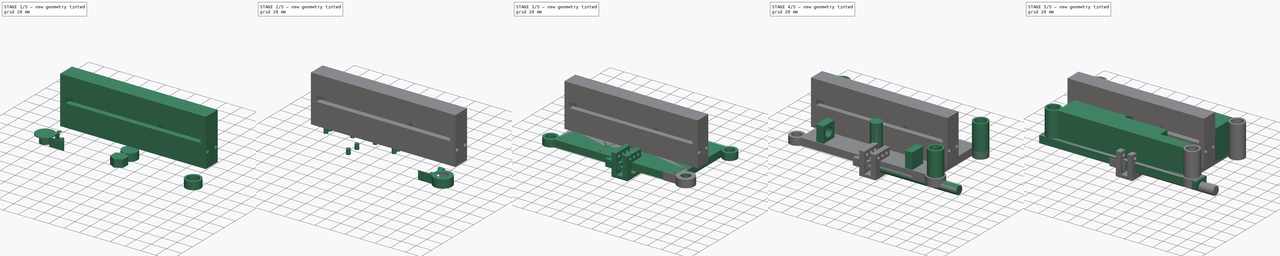
[diagram: build sequence overview — one tinted view per stage of 5, left to right]
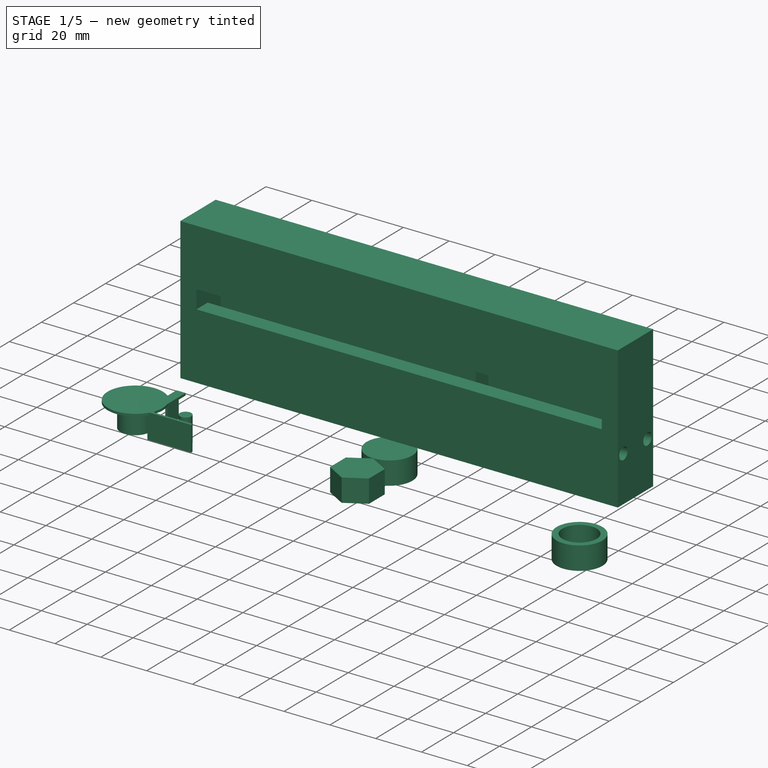
[diagram: stage 1 of 5 — iso view after this stage's code; geometry added in this stage tinted green]
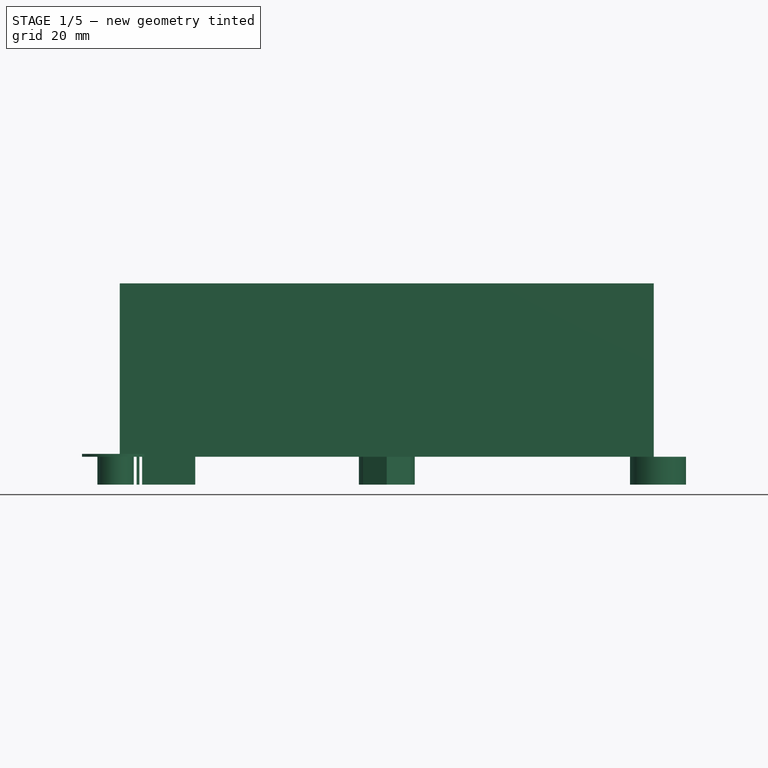
[diagram: stage 1 of 5 — front view after this stage's code; geometry added in this stage tinted green]
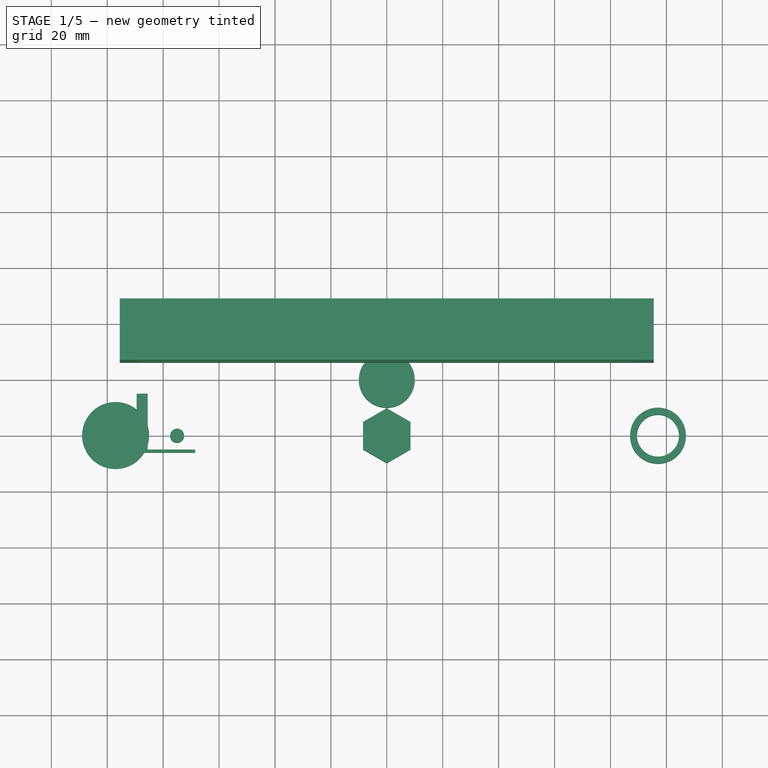
[diagram: stage 1 of 5 — top view after this stage's code; geometry added in this stage tinted green]
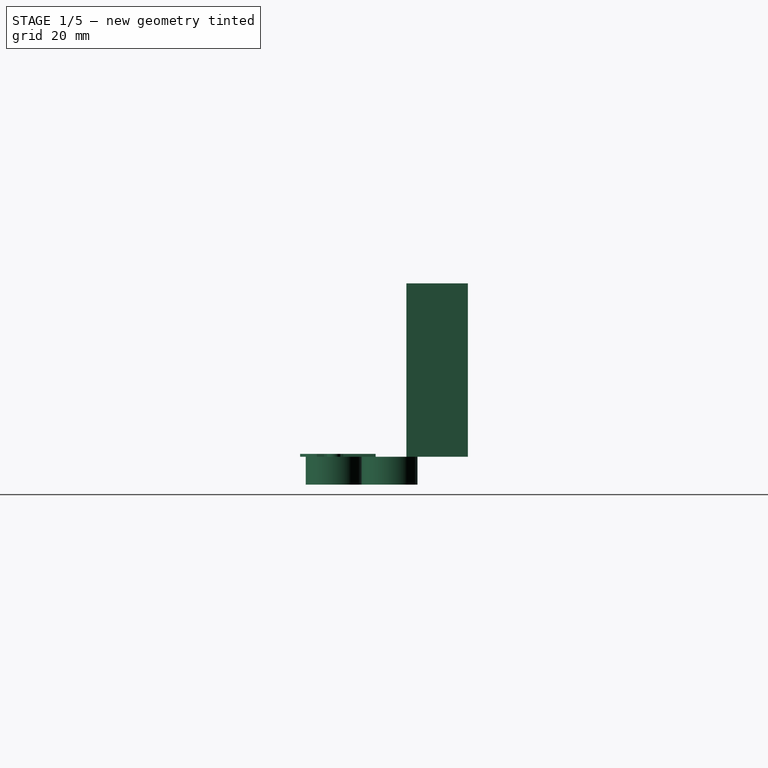
[diagram: stage 1 of 5 — right view after this stage's code; geometry added in this stage tinted green]
FCSTD DOCUMENT  (FreeCAD 0.19R24267 +99 (Git))
Label: movarriba_abajo_4
License: All rights reserved
LicenseURL: https://en.wikipedia.org/wiki/All_rights_reserved
objects: Part::Cylinder×141, Part::MultiFuse×56, Part::Cut×50, Part::Box×27, Sketcher::SketchObject×17, PartDesign::Pad×17, PartDesign::Body×13, Part::Fuse×10, Part::FeaturePython×2, Part::Mirroring×2
note: 352 computed .brp shape members not serialized (recipe doc carries the construction recipe); baked Part::Feature solids carry a one-line shape summary decoded from their .brp

FEATURE [Sketcher::SketchObject] Sketch011
  FullyConstrained = true
  MapMode = 5
  Support = -> [XY_Plane008]
  sketch-geometry (7):
    g0: LineSegment StartX=8.5 StartY=4.90748 StartZ=0 EndX=-1.8e-15 EndY=9.81495 EndZ=0
    g1: LineSegment StartX=-1.8e-15 StartY=9.81495 StartZ=0 EndX=-8.5 EndY=4.90748 EndZ=0
    g2: LineSegment StartX=-8.5 StartY=4.90748 StartZ=0 EndX=-8.5 EndY=-4.90748 EndZ=0
    g3: LineSegment StartX=-8.5 StartY=-4.90748 StartZ=0 EndX=0 EndY=-9.81495 EndZ=0
    g4: LineSegment StartX=0 StartY=-9.81495 StartZ=0 EndX=8.5 EndY=-4.90748 EndZ=0
    g5: LineSegment StartX=8.5 StartY=-4.90748 StartZ=0 EndX=8.5 EndY=4.90748 EndZ=0
    g6: Circle CenterX=0 CenterY=0 CenterZ=0 NormalX=0 NormalY=0 NormalZ=1 AngleXU=0 Radius=9.81495
  constraints (16):
    c: Coincident(g0,g1)
    c: Coincident(g1,g2)
    c: Coincident(g2,g3)
    c: Coincident(g3,g4)
    c: Coincident(g4,g5)
    c: Coincident(g5,g0)
    c: Equal(g0, g1-g5) x5
    c: PointOnObject(g0,g6)
    c: PointOnObject(g1,g6)
    c: PointOnObject(g2,g6)
    c: PointOnObject(g3,g6)
    c: PointOnObject(g4,g6)
    c: PointOnObject(g5,g6)
    c: Coincident(g6,g-1)
    c: Vertical(g2)
    c: DistanceX(g1,g0) = 17
FEATURE [Part::Cylinder] Cylinder020  label="Cilindro020"
  Angle = 360
  AttacherType = Attacher::AttachEngine3D
  Height = 10
  Placement = pos=(0,20,0) rot=(0,0,1;0rad)
  Radius = 10
FEATURE [Part::Cylinder] Cylinder021  label="Cilindro021"
  Angle = 360
  AttacherType = Attacher::AttachEngine3D
  Height = 10
  Placement = pos=(0,20,0) rot=(0,0,1;0rad)
  Radius = 7.5
FEATURE [Part::Cylinder] Cylinder022  label="Cilindro022"
  Angle = 360
  AttacherType = Attacher::AttachEngine3D
  Height = 10
  Placement = pos=(0,20,0) rot=(0,0,1;0rad)
  Radius = 7.5
FEATURE [Part::Cylinder] Cylinder023  label="Cilindro023"
  Angle = 360
  AttacherType = Attacher::AttachEngine3D
  Height = 10
  Placement = pos=(0,20,0) rot=(0,0,1;0rad)
  Radius = 10
FEATURE [Part::Cut] Cut019  label="unionbarra009"
  Base = -> Cylinder023
  Placement = pos=(97,-20,0) rot=(0,0,1;0rad)
  Tool = -> Cylinder022
FEATURE [PartDesign::Pad] Pad011
  Direction = (1,1,1)
  Length = 10
  Length2 = 100
  Profile = -> Sketch011
  Type = 0
FEATURE [Part::Cylinder] Cylinder024  label="Cilindro024"
  Angle = 360
  AttacherType = Attacher::AttachEngine3D
  Height = 1
  Placement = pos=(-97,0,10) rot=(0,0,1;0rad)
  Radius = 12
FEATURE [Part::Box] Box  label="Cubo001"
  AttacherType = Attacher::AttachEngine3D
  Height = 1
  Length = 3
  Placement = pos=(-88.5,-5,10) rot=(0,0,1;0rad)
  Width = 20
FEATURE [Part::Box] Box006  label="Cubo002"
  AttacherType = Attacher::AttachEngine3D
  Height = 11
  Length = 1
  Placement = pos=(-89.5,8,0) rot=(0,0,1;0rad)
  Width = 7
FEATURE [Part::Box] Box007  label="Cubo003"
  AttacherType = Attacher::AttachEngine3D
  Height = 11
  Length = 19
  Placement = pos=(-87.5,-6,0) rot=(0,0,1;0rad)
  Width = 1
FEATURE [Part::Cylinder] Cylinder025  label="Cilindro025"
  Angle = 360
  AttacherType = Attacher::AttachEngine3D
  Height = 11
  Placement = pos=(-75,0,0) rot=(0,0,1;0rad)
  Radius = 2.5
FEATURE [Part::Cylinder] Cylinder040  label="Cilindro040"
  Angle = 360
  AttacherType = Attacher::AttachEngine3D
  Height = 11
  Placement = pos=(-97,0,0) rot=(0,0,1;0rad)
  Radius = 6.5
FEATURE [Part::Box] Box030  label="Cubo027"
  AttacherType = Attacher::AttachEngine3D
  Height = 29
  Length = 177
  Placement = pos=(-88.5,26,10) rot=(0,0,1;0rad)
  Width = 7
FEATURE [Part::Box] Box031  label="Cubo028"
  AttacherType = Attacher::AttachEngine3D
  Height = 55
  Length = 177
  Placement = pos=(-88.5,41,10) rot=(0,0,1;0rad)
  Width = 7
FEATURE [Part::Box] Box036  label="Cubo033"
  AttacherType = Attacher::AttachEngine3D
  Height = 55
  Length = 7
  Placement = pos=(21.5,33,10) rot=(0,0,1;0rad)
  Width = 15
FEATURE [Part::Cylinder] Cylinder130  label="Cilindro130"
  Angle = 360
  AttacherType = Attacher::AttachEngine3D
  Height = 5
  Radius = 2.5
FEATURE [Part::Cylinder] Cylinder131  label="Cilindro131"
  Angle = 360
  AttacherType = Attacher::AttachEngine3D
  Height = 2
  Placement = pos=(0,0,5) rot=(0,0,1;0rad)
  Radius = 2.6
FEATURE [Part::MultiFuse] Fusion060  label="enganche_lego026"
  Placement = pos=(12,29.5,10) rot=(0,1,0;0rad)
  Shapes = -> [Cylinder130,Cylinder131]
FEATURE [Part::Cylinder] Cylinder132  label="Cilindro132"
  Angle = 360
  AttacherType = Attacher::AttachEngine3D
  Height = 5
  Radius = 2.5
FEATURE [Part::Cylinder] Cylinder133  label="Cilindro133"
  Angle = 360
  AttacherType = Attacher::AttachEngine3D
  Height = 2
  Placement = pos=(0,0,5) rot=(0,0,1;0rad)
  Radius = 2.6
FEATURE [Part::Cylinder] Cylinder134  label="Cilindro134"
  Angle = 360
  AttacherType = Attacher::AttachEngine3D
  Height = 2
  Placement = pos=(0,0,5) rot=(0,0,1;0rad)
  Radius = 2.6
FEATURE [Part::Cylinder] Cylinder135  label="Cilindro135"
  Angle = 360
  AttacherType = Attacher::AttachEngine3D
  Height = 2
  Placement = pos=(0,0,5) rot=(0,0,1;0rad)
  Radius = 2.6
FEATURE [Part::Cylinder] Cylinder136  label="Cilindro136"
  Angle = 360
  AttacherType = Attacher::AttachEngine3D
  Height = 5
  Radius = 2.5
FEATURE [Part::Cylinder] Cylinder137  label="Cilindro137"
  Angle = 360
  AttacherType = Attacher::AttachEngine3D
  Height = 5
  Radius = 2.5
FEATURE [Part::MultiFuse] Fusion061  label="enganche_lego027"
  Placement = pos=(-78,44.5,10) rot=(0,1,0;0rad)
  Shapes = -> [Cylinder137,Cylinder134]
FEATURE [Part::MultiFuse] Fusion062  label="enganche_lego028"
  Placement = pos=(12,44.5,10) rot=(0,1,0;0rad)
  Shapes = -> [Cylinder136,Cylinder135]
FEATURE [Part::MultiFuse] Fusion063  label="enganche_lego029"
  Placement = pos=(-78,29.5,10) rot=(0,1,0;0rad)
  Shapes = -> [Cylinder132,Cylinder133]
FEATURE [Part::Cylinder] Cylinder138  label="Cilindro138"
  Angle = 360
  AttacherType = Attacher::AttachEngine3D
  Height = 5
  Radius = 2.5
FEATURE [Part::Cylinder] Cylinder139  label="Cilindro139"
  Angle = 360
  AttacherType = Attacher::AttachEngine3D
  Height = 2
  Placement = pos=(0,0,5) rot=(0,0,1;0rad)
  Radius = 2.6
FEATURE [Part::MultiFuse] Fusion064  label="enganche_lego030"
  Placement = pos=(-88.5,29.5,30) rot=(0,1,0;4.71239rad)
  Shapes = -> [Cylinder138,Cylinder139]
FEATURE [Part::Cylinder] Cylinder140  label="Cilindro140"
  Angle = 360
  AttacherType = Attacher::AttachEngine3D
  Height = 5
  Radius = 2.5
FEATURE [Part::Cylinder] Cylinder141  label="Cilindro141"
  Angle = 360
  AttacherType = Attacher::AttachEngine3D
  Height = 2
  Placement = pos=(0,0,5) rot=(0,0,1;0rad)
  Radius = 2.6
FEATURE [Part::MultiFuse] Fusion065  label="enganche_lego031"
  Placement = pos=(-88.5,29.5,30) rot=(0,1,0;1.5708rad)
  Shapes = -> [Cylinder140,Cylinder141]
FEATURE [Part::Cylinder] Cylinder142  label="Cilindro142"
  Angle = 360
  AttacherType = Attacher::AttachEngine3D
  Height = 5
  Radius = 2.5
FEATURE [Part::Cylinder] Cylinder143  label="Cilindro143"
  Angle = 360
  AttacherType = Attacher::AttachEngine3D
  Height = 2
  Placement = pos=(0,0,5) rot=(0,0,1;0rad)
  Radius = 2.6
FEATURE [Part::MultiFuse] Fusion067  label="enganche_lego033"
  Placement = pos=(88.5,29.5,30) rot=(0,1,0;4.71239rad)
  Shapes = -> [Cylinder142,Cylinder143]
FEATURE [Part::Cylinder] Cylinder144  label="Cilindro144"
  Angle = 360
  AttacherType = Attacher::AttachEngine3D
  Height = 5
  Radius = 2.5
FEATURE [Part::Cylinder] Cylinder145  label="Cilindro145"
  Angle = 360
  AttacherType = Attacher::AttachEngine3D
  Height = 2
  Placement = pos=(0,0,5) rot=(0,0,1;0rad)
  Radius = 2.6
FEATURE [Part::MultiFuse] Fusion066  label="enganche_lego032"
  Placement = pos=(88.5,29.5,30) rot=(0,1,0;1.5708rad)
  Shapes = -> [Cylinder144,Cylinder145]
FEATURE [Part::Cylinder] Cylinder146  label="Cilindro146"
  Angle = 360
  AttacherType = Attacher::AttachEngine3D
  Height = 5
  Radius = 2.5
FEATURE [Part::Cylinder] Cylinder147  label="Cilindro147"
  Angle = 360
  AttacherType = Attacher::AttachEngine3D
  Height = 5
  Radius = 2.5
FEATURE [Part::Cylinder] Cylinder148  label="Cilindro148"
  Angle = 360
  AttacherType = Attacher::AttachEngine3D
  Height = 2
  Placement = pos=(0,0,5) rot=(0,0,1;0rad)
  Radius = 2.6
FEATURE [Part::MultiFuse] Fusion071  label="enganche_lego037"
  Placement = pos=(-88.5,44.5,30) rot=(0,-1,0;1.5708rad)
  Shapes = -> [Cylinder147,Cylinder148]
FEATURE [Part::Cylinder] Cylinder149  label="Cilindro149"
  Angle = 360
  AttacherType = Attacher::AttachEngine3D
  Height = 5
  Radius = 2.5
FEATURE [Part::Cylinder] Cylinder150  label="Cilindro150"
  Angle = 360
  AttacherType = Attacher::AttachEngine3D
  Height = 2
  Placement = pos=(0,0,5) rot=(0,0,1;0rad)
  Radius = 2.6
FEATURE [Part::MultiFuse] Fusion069  label="enganche_lego035"
  Placement = pos=(-88.5,44.5,30) rot=(0,1,0;1.5708rad)
  Shapes = -> [Cylinder149,Cylinder150]
FEATURE [Part::Cylinder] Cylinder151  label="Cilindro151"
  Angle = 360
  AttacherType = Attacher::AttachEngine3D
  Height = 2
  Placement = pos=(0,0,5) rot=(0,0,1;0rad)
  Radius = 2.6
FEATURE [Part::MultiFuse] Fusion068  label="enganche_lego034"
  Placement = pos=(88.5,44.5,30) rot=(0,-1,0;1.5708rad)
  Shapes = -> [Cylinder146,Cylinder151]
FEATURE [Part::Cylinder] Cylinder152  label="Cilindro152"
  Angle = 360
  AttacherType = Attacher::AttachEngine3D
  Height = 5
  Radius = 2.5
FEATURE [Part::Cylinder] Cylinder153  label="Cilindro153"
  Angle = 360
  AttacherType = Attacher::AttachEngine3D
  Height = 2
  Placement = pos=(0,0,5) rot=(0,0,1;0rad)
  Radius = 2.6
FEATURE [Part::MultiFuse] Fusion070  label="enganche_lego036"
  Placement = pos=(88.5,44.5,30) rot=(0,1,0;1.5708rad)
  Shapes = -> [Cylinder152,Cylinder153]
FEATURE [Part::Box] Box032  label="Cubo029"
  AttacherType = Attacher::AttachEngine3D
  Height = 55
  Length = 7
  Placement = pos=(-95.5,26,10) rot=(0,0,1;0rad)
  Width = 22
FEATURE [Part::Box] Box037  label="Cubo034"
  AttacherType = Attacher::AttachEngine3D
  Height = 18
  Length = 177
  Placement = pos=(-88.5,26,47) rot=(0,0,1;0rad)
  Width = 7
FEATURE [Part::Box] Box033  label="Cubo030"
  AttacherType = Attacher::AttachEngine3D
  Height = 55
  Length = 7
  Placement = pos=(88.5,26,10) rot=(0,0,1;0rad)
  Width = 22
FEATURE [Part::Box] Box034  label="Cubo031"
  AttacherType = Attacher::AttachEngine3D
  Height = 7
  Length = 191
  Placement = pos=(-95.5,26,65) rot=(0,0,1;0rad)
  Width = 22
FEATURE [Part::MultiFuse] Fusion058
  Shapes = -> [Box032,Box037,Box033,Box034]
FEATURE [Part::MultiFuse] Fusion072
  Shapes = -> [Box031,Box030,Box036]
FEATURE [Part::MultiFuse] Fusion073
  Shapes = -> [Fusion069,Fusion068,Fusion067,Fusion065,Fusion063,Fusion062,Fusion060,Fusion061]
FEATURE [Part::Cut] Cut057  label="engranajesuj1"
  Base = -> Fusion072
  Tool = -> Fusion073
FEATURE [Part::MultiFuse] Fusion074
  Shapes = -> [Fusion064,Fusion066,Fusion070,Fusion071]
FEATURE [Part::Cut] Cut058  label="engranajesuj2"
  Base = -> Fusion058
  Tool = -> Fusion074
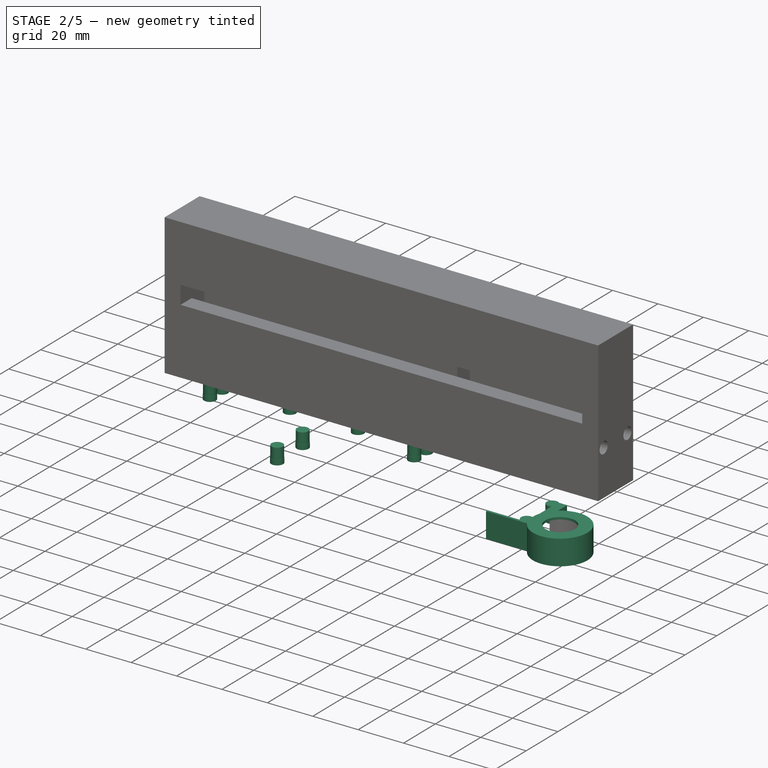
[diagram: stage 2 of 5 — iso view after this stage's code; geometry added in this stage tinted green]
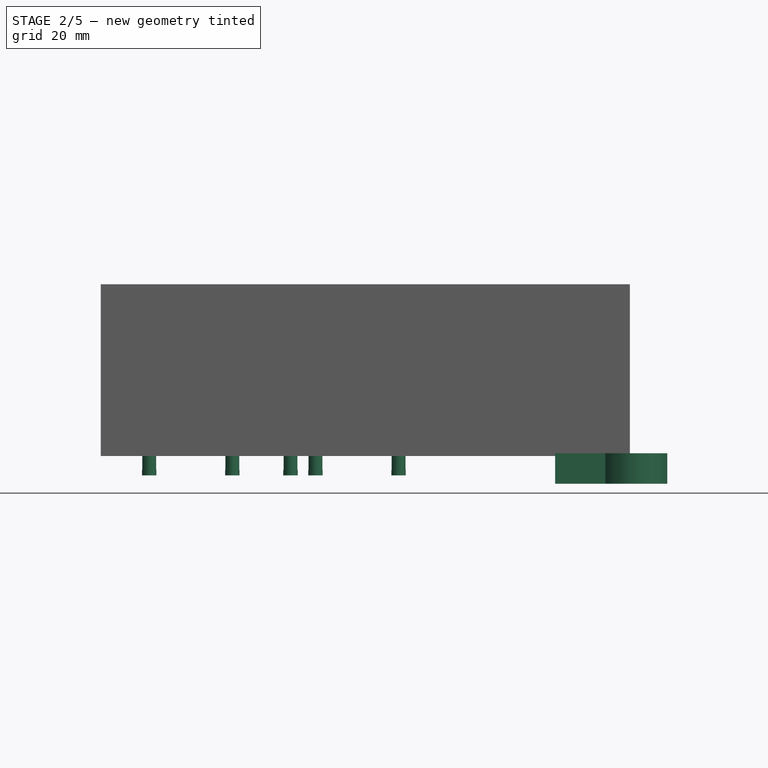
[diagram: stage 2 of 5 — front view after this stage's code; geometry added in this stage tinted green]
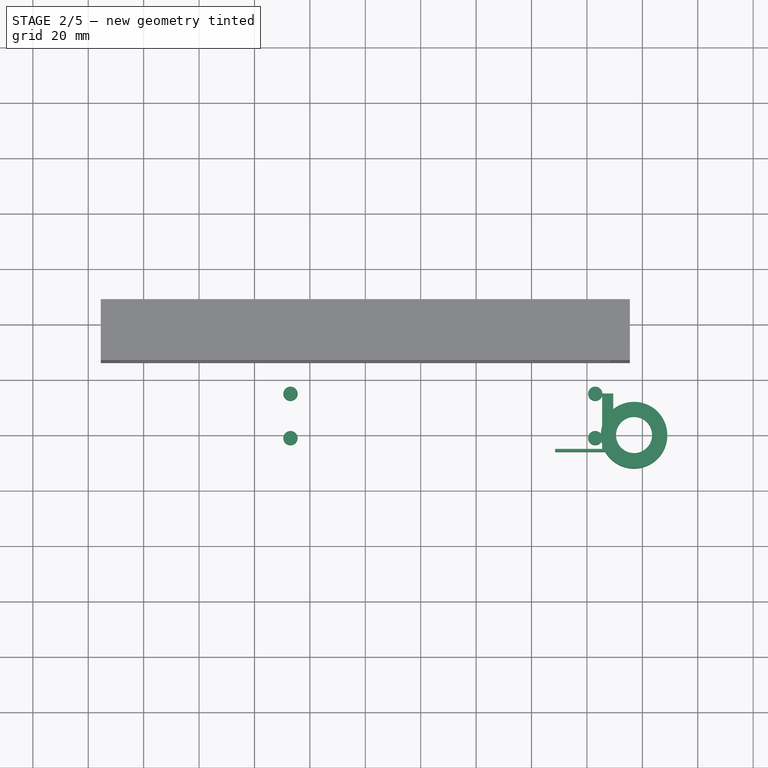
[diagram: stage 2 of 5 — top view after this stage's code; geometry added in this stage tinted green]
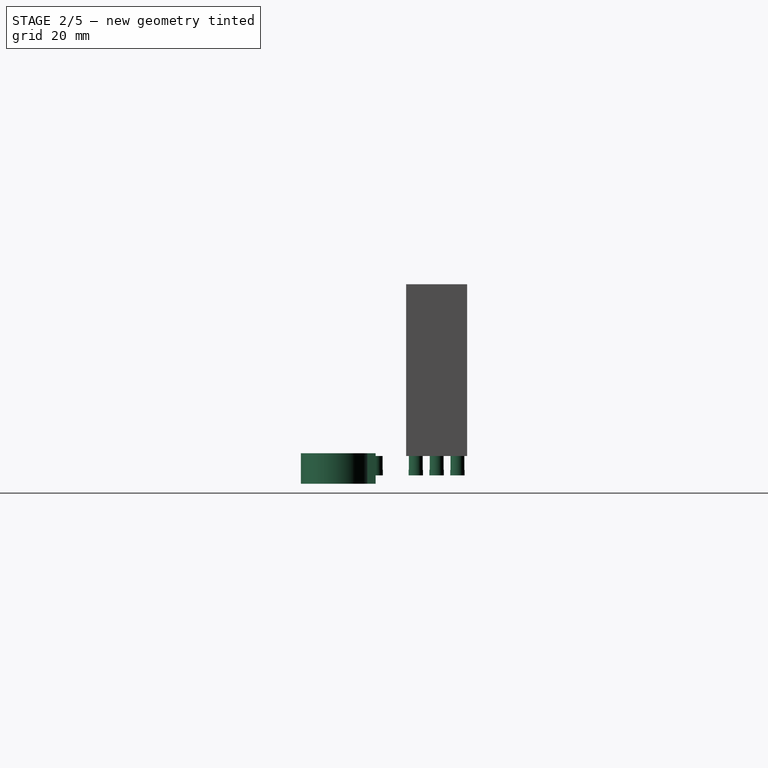
[diagram: stage 2 of 5 — right view after this stage's code; geometry added in this stage tinted green]
FEATURE [Part::FeaturePython] Tube  # WARN: FeaturePython — macro-defined, semantics opaque (R4)
  AttacherType = Attacher::AttachEngine3D
  Height = 10
  InnerRadius = 10.1
  OuterRadius = 12
  Placement = pos=(-97,0,0) rot=(0,0,1;0rad)
FEATURE [Part::Cylinder] Cylinder016  label="Cilindro016"
  Angle = 360
  AttacherType = Attacher::AttachEngine3D
  Height = 10
  Placement = pos=(0,20,0) rot=(0,0,1;0rad)
  Radius = 10
FEATURE [Part::Cylinder] Cylinder017  label="Cilindro017"
  Angle = 360
  AttacherType = Attacher::AttachEngine3D
  Height = 10
  Placement = pos=(0,20,0) rot=(0,0,1;0rad)
  Radius = 7.5
FEATURE [Part::Cylinder] Cylinder018  label="Cilindro018"
  Angle = 360
  AttacherType = Attacher::AttachEngine3D
  Height = 10
  Placement = pos=(0,20,0) rot=(0,0,1;0rad)
  Radius = 7.5
FEATURE [Part::Box] Box005  label="barra004"
  AttacherType = Attacher::AttachEngine3D
  Height = 10
  Length = 177
  Placement = pos=(-88.5,-5,0) rot=(0,0,1;0rad)
  Width = 100
FEATURE [Part::Cylinder] Cylinder019  label="Cilindro019"
  Angle = 360
  AttacherType = Attacher::AttachEngine3D
  Height = 10
  Placement = pos=(0,20,0) rot=(0,0,1;0rad)
  Radius = 10
FEATURE [Sketcher::SketchObject] Sketch008
  FullyConstrained = true
  MapMode = 5
  Support = -> [XY_Plane006]
  sketch-geometry (7):
    g0: LineSegment StartX=0 StartY=9.81495 StartZ=0 EndX=-8.5 EndY=4.90748 EndZ=0
    g1: LineSegment StartX=-8.5 StartY=4.90748 StartZ=0 EndX=-8.5 EndY=-4.90748 EndZ=0
    g2: LineSegment StartX=-8.5 StartY=-4.90748 StartZ=0 EndX=-8.1855e-12 EndY=-9.81495 EndZ=0
    g3: LineSegment StartX=-8.1855e-12 StartY=-9.81495 StartZ=0 EndX=8.5 EndY=-4.90748 EndZ=0
    g4: LineSegment StartX=8.5 StartY=-4.90748 StartZ=0 EndX=8.5 EndY=4.90748 EndZ=0
    g5: LineSegment StartX=8.5 StartY=4.90748 StartZ=0 EndX=0 EndY=9.81495 EndZ=0
    g6: Circle CenterX=0 CenterY=0 CenterZ=0 NormalX=0 NormalY=0 NormalZ=1 AngleXU=0 Radius=9.81495
  constraints (16):
    c: Coincident(g0,g1)
    c: Coincident(g1,g2)
    c: Coincident(g2,g3)
    c: Coincident(g3,g4)
    c: Coincident(g4,g5)
    c: Coincident(g5,g0)
    c: Equal(g0, g1-g5) x5
    c: PointOnObject(g0,g6)
    c: PointOnObject(g1,g6)
    c: PointOnObject(g2,g6)
    c: PointOnObject(g3,g6)
    c: PointOnObject(g4,g6)
    c: PointOnObject(g5,g6)
    c: Coincident(g6,g-1)
    c: PointOnObject(g5,g-2)
    c: DistanceX(g0,g4) = 17
FEATURE [Sketcher::SketchObject] Sketch010
  FullyConstrained = true
  MapMode = 5
  Support = -> [XY_Plane007]
  sketch-geometry (7):
    g0: LineSegment StartX=0 StartY=7.50555 StartZ=0 EndX=-6.5 EndY=3.75278 EndZ=0
    g1: LineSegment StartX=-6.5 StartY=3.75278 StartZ=0 EndX=-6.5 EndY=-3.75278 EndZ=0
    g2: LineSegment StartX=-6.5 StartY=-3.75278 StartZ=0 EndX=-4.44791e-11 EndY=-7.50555 EndZ=0
    g3: LineSegment StartX=-4.44789e-11 StartY=-7.50555 StartZ=0 EndX=6.5 EndY=-3.75278 EndZ=0
    g4: LineSegment StartX=6.5 StartY=-3.75278 StartZ=0 EndX=6.5 EndY=3.75278 EndZ=0
    g5: LineSegment StartX=6.5 StartY=3.75278 StartZ=0 EndX=0 EndY=7.50555 EndZ=0
    g6: Circle CenterX=0 CenterY=0 CenterZ=0 NormalX=0 NormalY=0 NormalZ=1 AngleXU=0 Radius=7.50555
  constraints (16):
    c: Coincident(g0,g1)
    c: Coincident(g1,g2)
    c: Coincident(g2,g3)
    c: Coincident(g3,g4)
    c: Coincident(g4,g5)
    c: Coincident(g5,g0)
    c: Equal(g0, g1-g5) x5
    c: PointOnObject(g0,g6)
    c: PointOnObject(g1,g6)
    c: PointOnObject(g2,g6)
    c: PointOnObject(g3,g6)
    c: PointOnObject(g4,g6)
    c: PointOnObject(g5,g6)
    c: Coincident(g6,g-1)
    c: PointOnObject(g5,g-2)
    c: DistanceX(g0,g4) = 13
FEATURE [Part::Cut] Cut014  label="unionbarra006"
  Base = -> Cylinder016
  Placement = pos=(-97,-20,0) rot=(0,0,1;0rad)
  Tool = -> Cylinder018
FEATURE [Part::Cut] Cut015  label="unionbarra007"
  Base = -> Cylinder019
  Placement = pos=(97,-20,0) rot=(0,0,1;0rad)
  Tool = -> Cylinder017
FEATURE [PartDesign::Pad] Pad009  label="interior_tuerca002"
  Direction = (0,0,1)
  Length = 6.5
  Length2 = 10
  Profile = -> Sketch010
  Type = 0
FEATURE [Sketcher::SketchObject] Sketch009
  FullyConstrained = true
  MapMode = 5
  Placement = pos=(0,0,6.5) rot=(0,0,1;0rad)
  Support = -> [Pad009]
  sketch-geometry (7):
    g0: LineSegment StartX=0 StartY=5.7735 StartZ=0 EndX=-5 EndY=2.88675 EndZ=0
    g1: LineSegment StartX=-5 StartY=2.88675 StartZ=0 EndX=-5 EndY=-2.88675 EndZ=0
    g2: LineSegment StartX=-5 StartY=-2.88675 StartZ=0 EndX=-2.33698e-11 EndY=-5.7735 EndZ=0
    g3: LineSegment StartX=-2.33698e-11 StartY=-5.7735 StartZ=0 EndX=5 EndY=-2.88675 EndZ=0
    g4: LineSegment StartX=5 StartY=-2.88675 StartZ=0 EndX=5 EndY=2.88675 EndZ=0
    g5: LineSegment StartX=5 StartY=2.88675 StartZ=0 EndX=0 EndY=5.7735 EndZ=0
    g6: Circle CenterX=0 CenterY=0 CenterZ=0 NormalX=0 NormalY=0 NormalZ=1 AngleXU=0 Radius=5.7735
  constraints (16):
    c: Coincident(g0,g1)
    c: Coincident(g1,g2)
    c: Coincident(g2,g3)
    c: Coincident(g3,g4)
    c: Coincident(g4,g5)
    c: Coincident(g5,g0)
    c: Equal(g0, g1-g5) x5
    c: PointOnObject(g0,g6)
    c: PointOnObject(g1,g6)
    c: PointOnObject(g2,g6)
    c: PointOnObject(g3,g6)
    c: PointOnObject(g4,g6)
    c: PointOnObject(g5,g6)
    c: Coincident(g6,g-1)
    c: PointOnObject(g5,g-2)
    c: DistanceX(g0,g4) = 10
FEATURE [PartDesign::Pad] Pad008  label="interior tubo002"
  BaseFeature = -> Pad009
  Direction = (0,0,1)
  Length = 4
  Length2 = 10
  Profile = -> Sketch009
  Type = 0
FEATURE [PartDesign::Body] Body007  label="Cuerpo005"
  Group = -> [Sketch010,Pad009,Sketch009,Pad008]
  Origin = -> Origin007
  Tip = -> Pad008
FEATURE [PartDesign::Pad] Pad010  label="exterior002"
  Direction = (0,0,1)
  Length = 10
  Length2 = 10
  Profile = -> Sketch008
  Type = 0
FEATURE [PartDesign::Body] Body006  label="Cuerpo004"
  Group = -> [Sketch008,Pad010]
  Origin = -> Origin006
  Tip = -> Pad010
FEATURE [Part::Cut] Cut016  label="sujetaTuercaM-010"
  Base = -> Body006
  Placement = pos=(0,45.1,0) rot=(0,0,1;0rad)
  Tool = -> Body007
FEATURE [Part::Fuse] Fusion007
  Base = -> Cut015
  Tool = -> Cut014
FEATURE [Part::Cut] Cut017  label="unionbarra008"
  Base = -> Cylinder020
  Placement = pos=(-97,-20,0) rot=(0,0,1;0rad)
  Tool = -> Cylinder021
FEATURE [Part::Fuse] Fusion009
  Base = -> Cut019
  Placement = pos=(0,90,0) rot=(0,0,1;0rad)
  Tool = -> Cut017
FEATURE [PartDesign::Body] Body008
  Group = -> [Sketch011,Pad011]
  Origin = -> Origin008
  Placement = pos=(0,45.1,0) rot=(0,0,1;0rad)
  Tip = -> Pad011
FEATURE [Part::Cut] Cut018
  Base = -> Box005
  Tool = -> Body008
FEATURE [Part::MultiFuse] Fusion008
  Shapes = -> [Fusion009,Cut018,Fusion007,Cut016]
FEATURE [Part::Cut] Cut020
  Base = -> Tube
  Tool = -> Fusion008
FEATURE [Part::MultiFuse] Fusion010
  Shapes = -> [Box007,Box006,Box,Cylinder024,Cut020]
FEATURE [Part::Cylinder] Cylinder026  label="Cilindro026"
  Angle = 360
  AttacherType = Attacher::AttachEngine3D
  Height = 11
  Placement = pos=(-83,10,0) rot=(0,0,1;0rad)
  Radius = 2.5
FEATURE [Part::Cut] Cut021
  Base = -> Fusion010
  Tool = -> Cylinder025
FEATURE [Part::Cut] Cut022
  Base = -> Cut021
  Tool = -> Cylinder026
FEATURE [Part::Cut] Cut034
  Base = -> Cut022
  Tool = -> Cylinder040
FEATURE [Part::Cylinder] Cylinder074  label="Cilindro074"
  Angle = 360
  AttacherType = Attacher::AttachEngine3D
  Height = 2
  Placement = pos=(0,0,5) rot=(0,0,1;0rad)
  Radius = 2.6
FEATURE [Part::Cylinder] Cylinder075  label="Cilindro075"
  Angle = 360
  AttacherType = Attacher::AttachEngine3D
  Height = 5
  Radius = 2.5
FEATURE [Part::MultiFuse] Fusion028  label="enganche_lego005"
  Placement = pos=(83,-1,10) rot=(0,1,0;3.14159rad)
  Shapes = -> [Cylinder075,Cylinder074]
FEATURE [Part::Cylinder] Cylinder076  label="Cilindro076"
  Angle = 360
  AttacherType = Attacher::AttachEngine3D
  Height = 5
  Radius = 2.5
FEATURE [Part::Cylinder] Cylinder077  label="Cilindro077"
  Angle = 360
  AttacherType = Attacher::AttachEngine3D
  Height = 2
  Placement = pos=(0,0,5) rot=(0,0,1;0rad)
  Radius = 2.6
FEATURE [Part::MultiFuse] Fusion029  label="enganche_lego006"
  Placement = pos=(83,15,10) rot=(0,1,0;3.14159rad)
  Shapes = -> [Cylinder076,Cylinder077]
FEATURE [Part::Cylinder] Cylinder078  label="Cilindro078"
  Angle = 360
  AttacherType = Attacher::AttachEngine3D
  Height = 5
  Radius = 2.5
FEATURE [Part::Cylinder] Cylinder079  label="Cilindro079"
  Angle = 360
  AttacherType = Attacher::AttachEngine3D
  Height = 2
  Placement = pos=(0,0,5) rot=(0,0,1;0rad)
  Radius = 2.6
FEATURE [Part::MultiFuse] Fusion030  label="enganche_lego007"
  Placement = pos=(-27,-1,10) rot=(0,1,0;3.14159rad)
  Shapes = -> [Cylinder078,Cylinder079]
FEATURE [Part::Cylinder] Cylinder080  label="Cilindro080"
  Angle = 360
  AttacherType = Attacher::AttachEngine3D
  Height = 2
  Placement = pos=(0,0,5) rot=(0,0,1;0rad)
  Radius = 2.6
FEATURE [Part::Cylinder] Cylinder081  label="Cilindro081"
  Angle = 360
  AttacherType = Attacher::AttachEngine3D
  Height = 5
  Radius = 2.5
FEATURE [Part::MultiFuse] Fusion031  label="enganche_lego008"
  Placement = pos=(-27,15,10) rot=(0,1,0;3.14159rad)
  Shapes = -> [Cylinder081,Cylinder080]
FEATURE [Part::Cylinder] Cylinder114  label="Cilindro114"
  Angle = 360
  AttacherType = Attacher::AttachEngine3D
  Height = 5
  Radius = 2.5
FEATURE [Part::Cylinder] Cylinder115  label="Cilindro115"
  Angle = 360
  AttacherType = Attacher::AttachEngine3D
  Height = 2
  Placement = pos=(0,0,5) rot=(0,0,1;0rad)
  Radius = 2.6
FEATURE [Part::MultiFuse] Fusion049  label="enganche_lego018"
  Placement = pos=(-78,37,10) rot=(0,1,0;3.14159rad)
  Shapes = -> [Cylinder114,Cylinder115]
FEATURE [Part::Cylinder] Cylinder116  label="Cilindro116"
  Angle = 360
  AttacherType = Attacher::AttachEngine3D
  Height = 2
  Placement = pos=(0,0,5) rot=(0,0,1;0rad)
  Radius = 2.6
FEATURE [Part::Cylinder] Cylinder117  label="Cilindro117"
  Angle = 360
  AttacherType = Attacher::AttachEngine3D
  Height = 5
  Radius = 2.5
FEATURE [Part::MultiFuse] Fusion050  label="enganche_lego019"
  Placement = pos=(-48,37,10) rot=(0,1,0;3.14159rad)
  Shapes = -> [Cylinder117,Cylinder116]
FEATURE [Part::Cylinder] Cylinder118  label="Cilindro118"
  Angle = 360
  AttacherType = Attacher::AttachEngine3D
  Height = 2
  Placement = pos=(0,0,5) rot=(0,0,1;0rad)
  Radius = 2.6
FEATURE [Part::Cylinder] Cylinder119  label="Cilindro119"
  Angle = 360
  AttacherType = Attacher::AttachEngine3D
  Height = 5
  Radius = 2.5
FEATURE [Part::MultiFuse] Fusion051  label="enganche_lego020"
  Placement = pos=(-18,37,10) rot=(0,1,0;3.14159rad)
  Shapes = -> [Cylinder119,Cylinder118]
FEATURE [Part::Cylinder] Cylinder120  label="Cilindro120"
  Angle = 360
  AttacherType = Attacher::AttachEngine3D
  Height = 2
  Placement = pos=(0,0,5) rot=(0,0,1;0rad)
  Radius = 2.6
FEATURE [Part::Cylinder] Cylinder121  label="Cilindro121"
  Angle = 360
  AttacherType = Attacher::AttachEngine3D
  Height = 5
  Radius = 2.5
FEATURE [Part::MultiFuse] Fusion052  label="enganche_lego021"
  Placement = pos=(12,37,10) rot=(0,1,0;3.14159rad)
  Shapes = -> [Cylinder121,Cylinder120]
FEATURE [Part::Cylinder] Cylinder122  label="Cilindro122"
  Angle = 360
  AttacherType = Attacher::AttachEngine3D
  Height = 2
  Placement = pos=(0,0,5) rot=(0,0,1;0rad)
  Radius = 2.6
FEATURE [Part::Cylinder] Cylinder123  label="Cilindro123"
  Angle = 360
  AttacherType = Attacher::AttachEngine3D
  Height = 5
  Radius = 2.5
FEATURE [Part::MultiFuse] Fusion053  label="enganche_lego022"
  Placement = pos=(12,44.5,10) rot=(0,1,0;3.14159rad)
  Shapes = -> [Cylinder123,Cylinder122]
FEATURE [Part::Cylinder] Cylinder124  label="Cilindro124"
  Angle = 360
  AttacherType = Attacher::AttachEngine3D
  Height = 2
  Placement = pos=(0,0,5) rot=(0,0,1;0rad)
  Radius = 2.6
FEATURE [Part::Cylinder] Cylinder125  label="Cilindro125"
  Angle = 360
  AttacherType = Attacher::AttachEngine3D
  Height = 5
  Radius = 2.5
FEATURE [Part::MultiFuse] Fusion054  label="enganche_lego023"
  Placement = pos=(-78,44.5,10) rot=(0,1,0;3.14159rad)
  Shapes = -> [Cylinder125,Cylinder124]
FEATURE [Part::Cylinder] Cylinder126  label="Cilindro126"
  Angle = 360
  AttacherType = Attacher::AttachEngine3D
  Height = 2
  Placement = pos=(0,0,5) rot=(0,0,1;0rad)
  Radius = 2.6
FEATURE [Part::Cylinder] Cylinder127  label="Cilindro127"
  Angle = 360
  AttacherType = Attacher::AttachEngine3D
  Height = 5
  Radius = 2.5
FEATURE [Part::MultiFuse] Fusion055  label="enganche_lego024"
  Placement = pos=(-78,29.5,10) rot=(0,1,0;3.14159rad)
  Shapes = -> [Cylinder127,Cylinder126]
FEATURE [Part::Cylinder] Cylinder128  label="Cilindro128"
  Angle = 360
  AttacherType = Attacher::AttachEngine3D
  Height = 2
  Placement = pos=(0,0,5) rot=(0,0,1;0rad)
  Radius = 2.6
FEATURE [Part::Cylinder] Cylinder129  label="Cilindro129"
  Angle = 360
  AttacherType = Attacher::AttachEngine3D
  Height = 5
  Radius = 2.5
FEATURE [Part::MultiFuse] Fusion056  label="enganche_lego025"
  Placement = pos=(12,29.5,10) rot=(0,1,0;3.14159rad)
  Shapes = -> [Cylinder129,Cylinder128]
FEATURE [Part::MultiFuse] Fusion057
  Shapes = -> [Fusion056,Fusion055,Fusion054,Fusion053,Fusion051,Fusion052,Fusion050,Fusion049,Fusion028,Fusion029,Fusion030,Fusion031]
FEATURE [Part::Mirroring] Part__Mirroring  label="Cut034 (Mirror #1)"
  Base = (0,0,0)
  Normal = (1,0,0)
  Source = -> Cut034
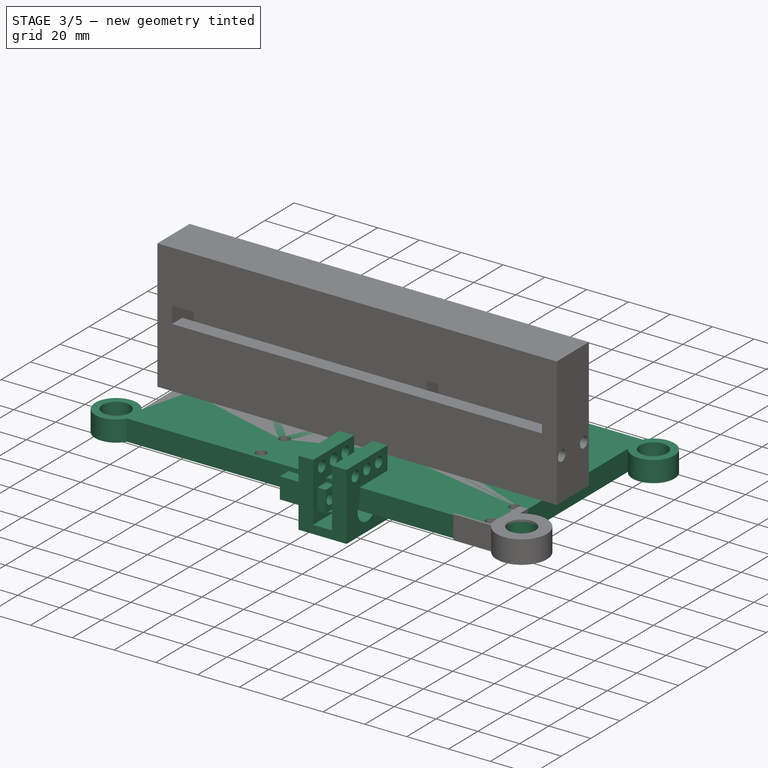
[diagram: stage 3 of 5 — iso view after this stage's code; geometry added in this stage tinted green]
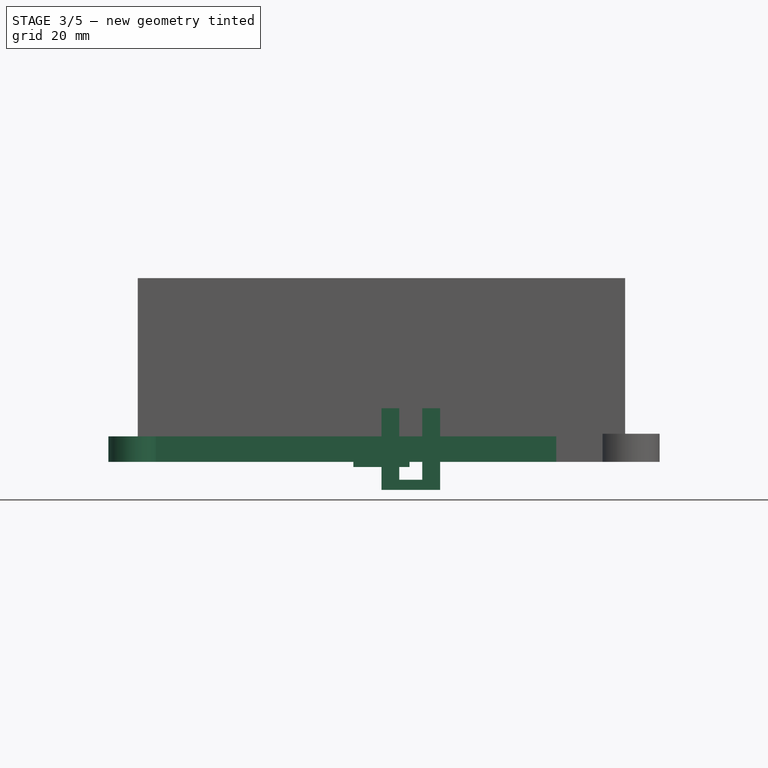
[diagram: stage 3 of 5 — front view after this stage's code; geometry added in this stage tinted green]
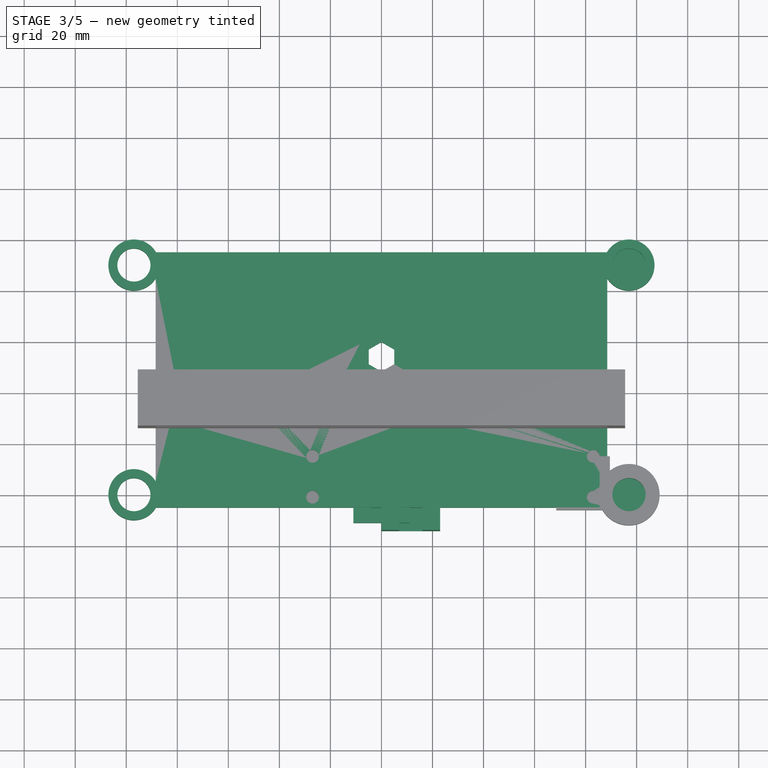
[diagram: stage 3 of 5 — top view after this stage's code; geometry added in this stage tinted green]
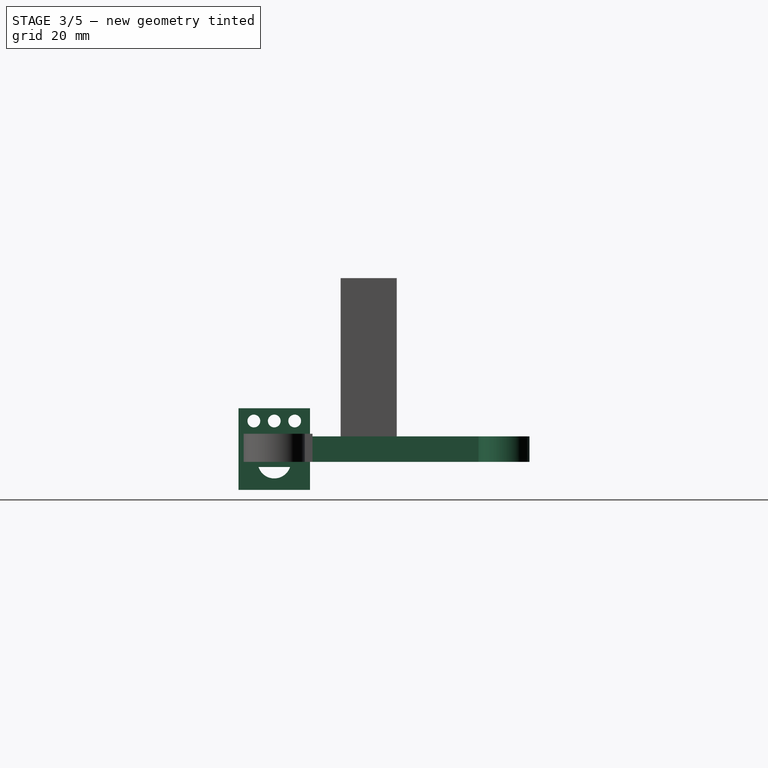
[diagram: stage 3 of 5 — right view after this stage's code; geometry added in this stage tinted green]
FEATURE [Part::Cylinder] Cylinder006  label="Cilindro006"
  Angle = 360
  AttacherType = Attacher::AttachEngine3D
  Height = 10
  Placement = pos=(0,20,0) rot=(0,0,1;0rad)
  Radius = 6.5
FEATURE [Part::Cylinder] Cylinder007  label="Cilindro007"
  Angle = 360
  AttacherType = Attacher::AttachEngine3D
  Height = 10
  Placement = pos=(0,20,0) rot=(0,0,1;0rad)
  Radius = 6.5
FEATURE [Part::Cylinder] Cylinder008  label="Cilindro008"
  Angle = 360
  AttacherType = Attacher::AttachEngine3D
  Height = 10
  Placement = pos=(0,20,0) rot=(0,0,1;0rad)
  Radius = 10
FEATURE [Part::Cylinder] Cylinder009  label="Cilindro009"
  Angle = 360
  AttacherType = Attacher::AttachEngine3D
  Height = 10
  Placement = pos=(0,20,0) rot=(0,0,1;0rad)
  Radius = 10
FEATURE [Part::Cut] Cut006  label="unionbarra002"
  Base = -> Cylinder008
  Placement = pos=(97,-20,0) rot=(0,0,1;0rad)
  Tool = -> Cylinder007
FEATURE [Part::Cut] Cut007  label="unionbarra003"
  Base = -> Cylinder009
  Placement = pos=(-97,-20,0) rot=(0,0,1;0rad)
  Tool = -> Cylinder006
FEATURE [Sketcher::SketchObject] Sketch004
  FullyConstrained = true
  MapMode = 5
  Support = -> [XY_Plane002]
  sketch-geometry (7):
    g0: LineSegment StartX=0 StartY=7.50555 StartZ=0 EndX=-6.5 EndY=3.75278 EndZ=0
    g1: LineSegment StartX=-6.5 StartY=3.75278 StartZ=0 EndX=-6.5 EndY=-3.75278 EndZ=0
    g2: LineSegment StartX=-6.5 StartY=-3.75278 StartZ=0 EndX=-4.44791e-11 EndY=-7.50555 EndZ=0
    g3: LineSegment StartX=-4.44789e-11 StartY=-7.50555 StartZ=0 EndX=6.5 EndY=-3.75278 EndZ=0
    g4: LineSegment StartX=6.5 StartY=-3.75278 StartZ=0 EndX=6.5 EndY=3.75278 EndZ=0
    g5: LineSegment StartX=6.5 StartY=3.75278 StartZ=0 EndX=0 EndY=7.50555 EndZ=0
    g6: Circle CenterX=0 CenterY=0 CenterZ=0 NormalX=0 NormalY=0 NormalZ=1 AngleXU=0 Radius=7.50555
  constraints (16):
    c: Coincident(g0,g1)
    c: Coincident(g1,g2)
    c: Coincident(g2,g3)
    c: Coincident(g3,g4)
    c: Coincident(g4,g5)
    c: Coincident(g5,g0)
    c: Equal(g0, g1-g5) x5
    c: PointOnObject(g0,g6)
    c: PointOnObject(g1,g6)
    c: PointOnObject(g2,g6)
    c: PointOnObject(g3,g6)
    c: PointOnObject(g4,g6)
    c: PointOnObject(g5,g6)
    c: Coincident(g6,g-1)
    c: PointOnObject(g5,g-2)
    c: DistanceX(g0,g4) = 13
FEATURE [Sketcher::SketchObject] Sketch005
  FullyConstrained = true
  MapMode = 5
  Support = -> [XY_Plane003]
  sketch-geometry (7):
    g0: LineSegment StartX=0 StartY=9.81495 StartZ=0 EndX=-8.5 EndY=4.90748 EndZ=0
    g1: LineSegment StartX=-8.5 StartY=4.90748 StartZ=0 EndX=-8.5 EndY=-4.90748 EndZ=0
    g2: LineSegment StartX=-8.5 StartY=-4.90748 StartZ=0 EndX=-8.1855e-12 EndY=-9.81495 EndZ=0
    g3: LineSegment StartX=-8.1855e-12 StartY=-9.81495 StartZ=0 EndX=8.5 EndY=-4.90748 EndZ=0
    g4: LineSegment StartX=8.5 StartY=-4.90748 StartZ=0 EndX=8.5 EndY=4.90748 EndZ=0
    g5: LineSegment StartX=8.5 StartY=4.90748 StartZ=0 EndX=0 EndY=9.81495 EndZ=0
    g6: Circle CenterX=0 CenterY=0 CenterZ=0 NormalX=0 NormalY=0 NormalZ=1 AngleXU=0 Radius=9.81495
  constraints (16):
    c: Coincident(g0,g1)
    c: Coincident(g1,g2)
    c: Coincident(g2,g3)
    c: Coincident(g3,g4)
    c: Coincident(g4,g5)
    c: Coincident(g5,g0)
    c: Equal(g0, g1-g5) x5
    c: PointOnObject(g0,g6)
    c: PointOnObject(g1,g6)
    c: PointOnObject(g2,g6)
    c: PointOnObject(g3,g6)
    c: PointOnObject(g4,g6)
    c: PointOnObject(g5,g6)
    c: Coincident(g6,g-1)
    c: PointOnObject(g5,g-2)
    c: DistanceX(g0,g4) = 17
FEATURE [PartDesign::Pad] Pad003  label="interior_tuerca"
  Direction = (0,0,1)
  Length = 6.5
  Length2 = 10
  Profile = -> Sketch004
  Type = 0
FEATURE [Sketcher::SketchObject] Sketch003
  FullyConstrained = true
  MapMode = 5
  Placement = pos=(0,0,6.5) rot=(0,0,1;0rad)
  Support = -> [Pad003]
  sketch-geometry (7):
    g0: LineSegment StartX=0 StartY=5.7735 StartZ=0 EndX=-5 EndY=2.88675 EndZ=0
    g1: LineSegment StartX=-5 StartY=2.88675 StartZ=0 EndX=-5 EndY=-2.88675 EndZ=0
    g2: LineSegment StartX=-5 StartY=-2.88675 StartZ=0 EndX=-2.33698e-11 EndY=-5.7735 EndZ=0
    g3: LineSegment StartX=-2.33698e-11 StartY=-5.7735 StartZ=0 EndX=5 EndY=-2.88675 EndZ=0
    g4: LineSegment StartX=5 StartY=-2.88675 StartZ=0 EndX=5 EndY=2.88675 EndZ=0
    g5: LineSegment StartX=5 StartY=2.88675 StartZ=0 EndX=0 EndY=5.7735 EndZ=0
    g6: Circle CenterX=0 CenterY=0 CenterZ=0 NormalX=0 NormalY=0 NormalZ=1 AngleXU=0 Radius=5.7735
  constraints (16):
    c: Coincident(g0,g1)
    c: Coincident(g1,g2)
    c: Coincident(g2,g3)
    c: Coincident(g3,g4)
    c: Coincident(g4,g5)
    c: Coincident(g5,g0)
    c: Equal(g0, g1-g5) x5
    c: PointOnObject(g0,g6)
    c: PointOnObject(g1,g6)
    c: PointOnObject(g2,g6)
    c: PointOnObject(g3,g6)
    c: PointOnObject(g4,g6)
    c: PointOnObject(g5,g6)
    c: Coincident(g6,g-1)
    c: PointOnObject(g5,g-2)
    c: DistanceX(g0,g4) = 10
FEATURE [PartDesign::Pad] Pad004  label="exterior"
  Direction = (0,0,1)
  Length = 10
  Length2 = 10
  Profile = -> Sketch005
  Type = 0
FEATURE [PartDesign::Body] Body002  label="Cuerpo002"
  Group = -> [Sketch005,Pad004]
  Origin = -> Origin003
  Tip = -> Pad004
FEATURE [PartDesign::Pad] Pad005  label="interior tubo"
  BaseFeature = -> Pad003
  Direction = (0,0,1)
  Length = 4
  Length2 = 10
  Profile = -> Sketch003
  Type = 0
FEATURE [PartDesign::Body] Body003  label="Cuerpo003"
  Group = -> [Sketch004,Pad003,Sketch003,Pad005]
  Origin = -> Origin002
  Tip = -> Pad005
FEATURE [Part::Cut] Cut008  label="sujetaTuercaM-8"
  Base = -> Body002
  Placement = pos=(0,54,0) rot=(0,0,1;0rad)
  Tool = -> Body003
FEATURE [Part::Box] Box004  label="barra003"
  AttacherType = Attacher::AttachEngine3D
  Height = 10
  Length = 177
  Placement = pos=(-88.5,-5,0) rot=(0,0,1;0rad)
  Width = 100
FEATURE [Part::Fuse] Fusion
  Base = -> Cut006
  Tool = -> Cut007
FEATURE [Sketcher::SketchObject] Sketch007
  FullyConstrained = true
  MapMode = 5
  Support = -> [XY_Plane005]
  sketch-geometry (7):
    g0: LineSegment StartX=8.5 StartY=4.90748 StartZ=0 EndX=-1.8e-15 EndY=9.81495 EndZ=0
    g1: LineSegment StartX=-1.8e-15 StartY=9.81495 StartZ=0 EndX=-8.5 EndY=4.90748 EndZ=0
    g2: LineSegment StartX=-8.5 StartY=4.90748 StartZ=0 EndX=-8.5 EndY=-4.90748 EndZ=0
    g3: LineSegment StartX=-8.5 StartY=-4.90748 StartZ=0 EndX=0 EndY=-9.81495 EndZ=0
    g4: LineSegment StartX=0 StartY=-9.81495 StartZ=0 EndX=8.5 EndY=-4.90748 EndZ=0
    g5: LineSegment StartX=8.5 StartY=-4.90748 StartZ=0 EndX=8.5 EndY=4.90748 EndZ=0
    g6: Circle CenterX=0 CenterY=0 CenterZ=0 NormalX=0 NormalY=0 NormalZ=1 AngleXU=0 Radius=9.81495
  constraints (16):
    c: Coincident(g0,g1)
    c: Coincident(g1,g2)
    c: Coincident(g2,g3)
    c: Coincident(g3,g4)
    c: Coincident(g4,g5)
    c: Coincident(g5,g0)
    c: Equal(g0, g1-g5) x5
    c: PointOnObject(g0,g6)
    c: PointOnObject(g1,g6)
    c: PointOnObject(g2,g6)
    c: PointOnObject(g3,g6)
    c: PointOnObject(g4,g6)
    c: PointOnObject(g5,g6)
    c: Coincident(g6,g-1)
    c: Vertical(g2)
    c: DistanceX(g1,g0) = 17
FEATURE [PartDesign::Pad] Pad007
  Direction = (1,1,1)
  Length = 10
  Length2 = 100
  Profile = -> Sketch007
  Type = 0
FEATURE [PartDesign::Body] Body005
  Group = -> [Sketch007,Pad007]
  Origin = -> Origin005
  Placement = pos=(0,54,0) rot=(0,0,1;0rad)
  Tip = -> Pad007
FEATURE [Part::Cut] Cut011
  Base = -> Box004
  Tool = -> Body005
FEATURE [Part::Cylinder] Cylinder012  label="Cilindro012"
  Angle = 360
  AttacherType = Attacher::AttachEngine3D
  Height = 10
  Placement = pos=(0,20,0) rot=(0,0,1;0rad)
  Radius = 10
FEATURE [Part::Cylinder] Cylinder013  label="Cilindro013"
  Angle = 360
  AttacherType = Attacher::AttachEngine3D
  Height = 10
  Placement = pos=(0,20,0) rot=(0,0,1;0rad)
  Radius = 6.5
FEATURE [Part::Cylinder] Cylinder014  label="Cilindro014"
  Angle = 360
  AttacherType = Attacher::AttachEngine3D
  Height = 10
  Placement = pos=(0,20,0) rot=(0,0,1;0rad)
  Radius = 6.5
FEATURE [Part::Cylinder] Cylinder015  label="Cilindro015"
  Angle = 360
  AttacherType = Attacher::AttachEngine3D
  Height = 10
  Placement = pos=(0,20,0) rot=(0,0,1;0rad)
  Radius = 10
FEATURE [Part::Cut] Cut012  label="unionbarra004"
  Base = -> Cylinder012
  Placement = pos=(-97,-20,0) rot=(0,0,1;0rad)
  Tool = -> Cylinder014
FEATURE [Part::Cut] Cut013  label="unionbarra005"
  Base = -> Cylinder015
  Placement = pos=(97,-20,0) rot=(0,0,1;0rad)
  Tool = -> Cylinder013
FEATURE [Part::Fuse] Fusion005
  Base = -> Cut013
  Placement = pos=(0,90,0) rot=(0,0,1;0rad)
  Tool = -> Cut012
FEATURE [Part::MultiFuse] Fusion006
  Shapes = -> [Fusion005,Cut011,Fusion,Cut008]
FEATURE [Part::Cylinder] Cylinder092  label="Cilindro092"
  Angle = 360
  AttacherType = Attacher::AttachEngine3D
  Height = 2
  Placement = pos=(97,90,0) rot=(0,0,1;0rad)
  Radius = 10
FEATURE [Part::Cylinder] Cylinder093  label="Cilindro093"
  Angle = 360
  AttacherType = Attacher::AttachEngine3D
  Height = 2
  Placement = pos=(97,0,0) rot=(0,0,1;0rad)
  Radius = 10
FEATURE [Part::Box] Box026  label="Cubo023"
  AttacherType = Attacher::AttachEngine3D
  Height = 22
  Length = 10
  Placement = pos=(-2,-11,-11) rot=(0,0,1;0rad)
  Width = 22
FEATURE [Part::Cylinder] Cylinder094  label="Cilindro094"
  Angle = 360
  AttacherType = Attacher::AttachEngine3D
  Height = 130
  Placement = pos=(0,0,0) rot=(0,1,0;1.5708rad)
  Radius = 6.5
FEATURE [Part::Cylinder] Cylinder095  label="Cilindro095"
  Angle = 360
  AttacherType = Attacher::AttachEngine3D
  Height = 2
  Placement = pos=(0,0,5) rot=(0,0,1;0rad)
  Radius = 2.6
FEATURE [Part::Cylinder] Cylinder096  label="Cilindro096"
  Angle = 360
  AttacherType = Attacher::AttachEngine3D
  Height = 5
  Radius = 2.5
FEATURE [Part::MultiFuse] Fusion036  label="enganche_lego009"
  Placement = pos=(3,8,-11) rot=(0,0,1;0rad)
  Shapes = -> [Cylinder096,Cylinder095]
FEATURE [Part::Cylinder] Cylinder097  label="Cilindro097"
  Angle = 360
  AttacherType = Attacher::AttachEngine3D
  Height = 5
  Radius = 2.5
FEATURE [Part::Cylinder] Cylinder098  label="Cilindro098"
  Angle = 360
  AttacherType = Attacher::AttachEngine3D
  Height = 2
  Placement = pos=(0,0,5) rot=(0,0,1;0rad)
  Radius = 2.6
FEATURE [Part::MultiFuse] Fusion037  label="enganche_lego010"
  Placement = pos=(3,-8,-11) rot=(0,0,1;0rad)
  Shapes = -> [Cylinder097,Cylinder098]
FEATURE [Part::MultiFuse] Fusion038
  Shapes = -> [Fusion037,Fusion036,Cylinder094]
FEATURE [Part::Cut] Cut053  label="lim_barra_pieza"
  Base = -> Box026
  Placement = pos=(0,0,0) rot=(0,-1,0;1.5708rad)
  Tool = -> Fusion038
FEATURE [Part::Box] Box027  label="Cubo024"
  AttacherType = Attacher::AttachEngine3D
  Height = 32
  Length = 7
  Placement = pos=(0,-14,-11) rot=(0,0,1;0rad)
  Width = 28
FEATURE [Part::Cylinder] Cylinder099  label="Cilindro099"
  Angle = 360
  AttacherType = Attacher::AttachEngine3D
  Height = 130
  Placement = pos=(-2,0,0) rot=(0,1,0;1.5708rad)
  Radius = 6.5
FEATURE [Part::Box] Box028  label="Cubo025"
  AttacherType = Attacher::AttachEngine3D
  Height = 4
  Length = 23
  Placement = pos=(0,-14,-11) rot=(0,0,1;0rad)
  Width = 28
FEATURE [Part::Box] Box029  label="Cubo026"
  AttacherType = Attacher::AttachEngine3D
  Height = 32
  Length = 7
  Placement = pos=(16,-14,-11) rot=(0,0,1;0rad)
  Width = 28
FEATURE [Part::Cylinder] Cylinder100  label="Cilindro100"
  Angle = 360
  AttacherType = Attacher::AttachEngine3D
  Height = 5
  Radius = 2.5
FEATURE [Part::Cylinder] Cylinder101  label="Cilindro101"
  Angle = 360
  AttacherType = Attacher::AttachEngine3D
  Height = 2
  Placement = pos=(0,0,5) rot=(0,0,1;0rad)
  Radius = 2.6
FEATURE [Part::MultiFuse] Fusion039  label="enganche_lego011"
  Placement = pos=(0,8,16) rot=(0,1,0;1.5708rad)
  Shapes = -> [Cylinder100,Cylinder101]
FEATURE [Part::Cylinder] Cylinder102  label="Cilindro102"
  Angle = 360
  AttacherType = Attacher::AttachEngine3D
  Height = 5
  Radius = 2.5
FEATURE [Part::Cylinder] Cylinder103  label="Cilindro103"
  Angle = 360
  AttacherType = Attacher::AttachEngine3D
  Height = 2
  Placement = pos=(0,0,5) rot=(0,0,1;0rad)
  Radius = 2.6
FEATURE [Part::MultiFuse] Fusion040  label="enganche_lego012"
  Placement = pos=(0,-8,16) rot=(0,1,0;1.5708rad)
  Shapes = -> [Cylinder102,Cylinder103]
FEATURE [Part::Cylinder] Cylinder106  label="Cilindro106"
  Angle = 360
  AttacherType = Attacher::AttachEngine3D
  Height = 5
  Radius = 2.5
FEATURE [Part::Cylinder] Cylinder107  label="Cilindro107"
  Angle = 360
  AttacherType = Attacher::AttachEngine3D
  Height = 2
  Placement = pos=(0,0,5) rot=(0,0,1;0rad)
  Radius = 2.6
FEATURE [Part::MultiFuse] Fusion042  label="enganche_lego014"
  Placement = pos=(23,-8,16) rot=(0,-1,0;1.5708rad)
  Shapes = -> [Cylinder106,Cylinder107]
FEATURE [Part::Cylinder] Cylinder108  label="Cilindro108"
  Angle = 360
  AttacherType = Attacher::AttachEngine3D
  Height = 5
  Radius = 2.5
FEATURE [Part::Cylinder] Cylinder109  label="Cilindro109"
  Angle = 360
  AttacherType = Attacher::AttachEngine3D
  Height = 2
  Placement = pos=(0,0,5) rot=(0,0,1;0rad)
  Radius = 2.6
FEATURE [Part::MultiFuse] Fusion043  label="enganche_lego015"
  Placement = pos=(23,8,16) rot=(0,-1,0;1.5708rad)
  Shapes = -> [Cylinder108,Cylinder109]
FEATURE [Part::MultiFuse] Fusion045
  Shapes = -> [Box027,Box028,Box029]
FEATURE [Part::Cylinder] Cylinder110  label="Cilindro110"
  Angle = 360
  AttacherType = Attacher::AttachEngine3D
  Height = 2
  Placement = pos=(0,0,5) rot=(0,0,1;0rad)
  Radius = 2.6
FEATURE [Part::Cylinder] Cylinder111  label="Cilindro111"
  Angle = 360
  AttacherType = Attacher::AttachEngine3D
  Height = 5
  Radius = 2.5
FEATURE [Part::MultiFuse] Fusion046  label="enganche_lego016"
  Placement = pos=(23,0,16) rot=(0,-1,0;1.5708rad)
  Shapes = -> [Cylinder111,Cylinder110]
FEATURE [Part::MultiFuse] Fusion047
  Shapes = -> [Fusion046,Fusion043,Fusion042,Fusion040,Fusion039,Cylinder099]
FEATURE [Part::Cut] Cut054  label="barra-garra"
  Base = -> Fusion045
  Tool = -> Fusion047
FEATURE [Part::Cylinder] Cylinder112  label="Cilindro112"
  Angle = 360
  AttacherType = Attacher::AttachEngine3D
  Height = 2
  Placement = pos=(0,0,5) rot=(0,0,1;0rad)
  Radius = 2.6
FEATURE [Part::Cylinder] Cylinder113  label="Cilindro113"
  Angle = 360
  AttacherType = Attacher::AttachEngine3D
  Height = 5
  Radius = 2.5
FEATURE [Part::MultiFuse] Fusion048  label="enganche_lego017"
  Placement = pos=(0,0,16) rot=(0,1,0;1.5708rad)
  Shapes = -> [Cylinder113,Cylinder112]
FEATURE [Part::Cut] Cut055  label="barra-garra001"
  Base = -> Cut054
  Tool = -> Fusion048
FEATURE [Part::Cut] Cut056  label="placa-movil"
  Base = -> Fusion006
  Tool = -> Fusion057
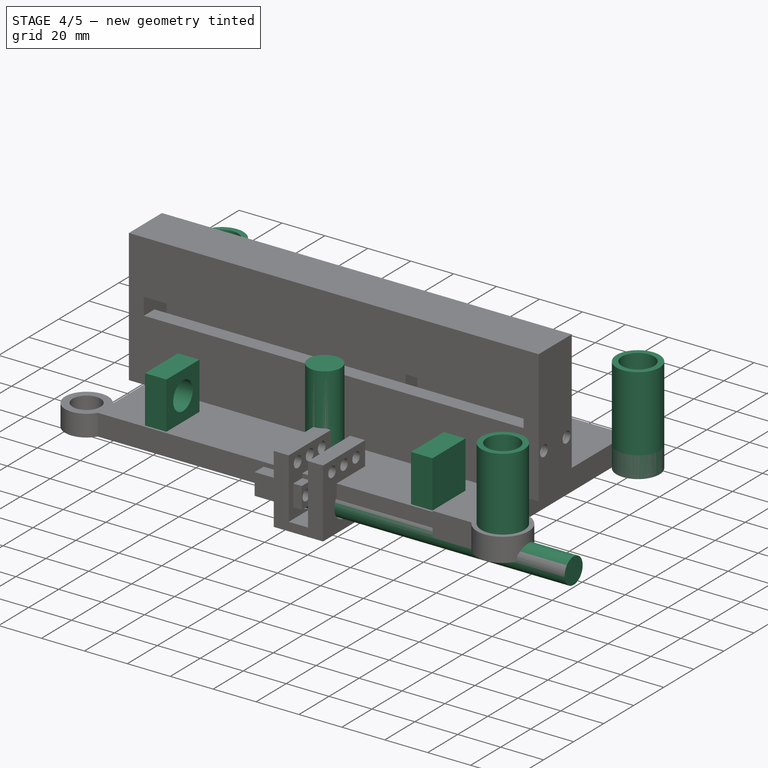
[diagram: stage 4 of 5 — iso view after this stage's code; geometry added in this stage tinted green]
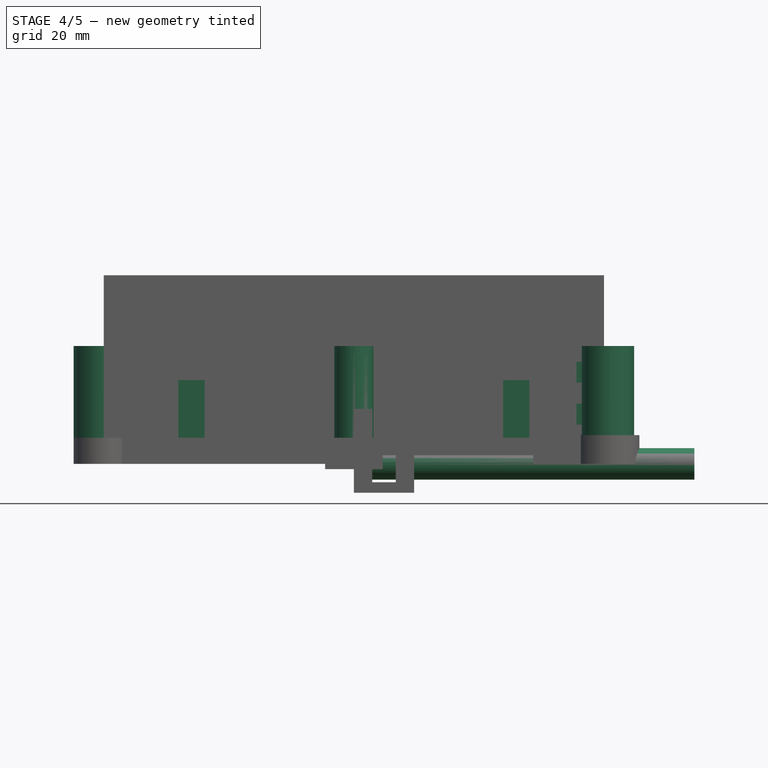
[diagram: stage 4 of 5 — front view after this stage's code; geometry added in this stage tinted green]
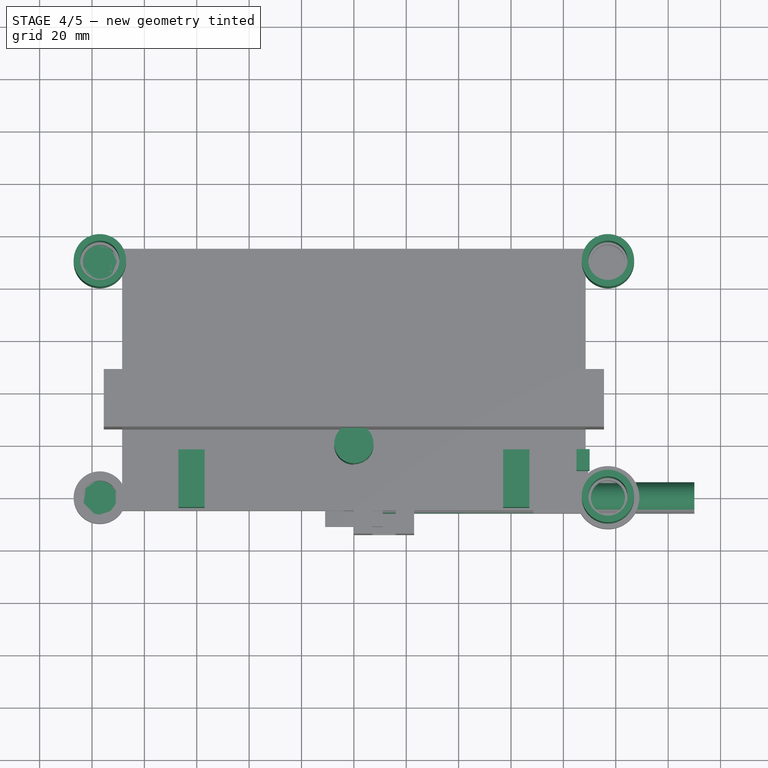
[diagram: stage 4 of 5 — top view after this stage's code; geometry added in this stage tinted green]
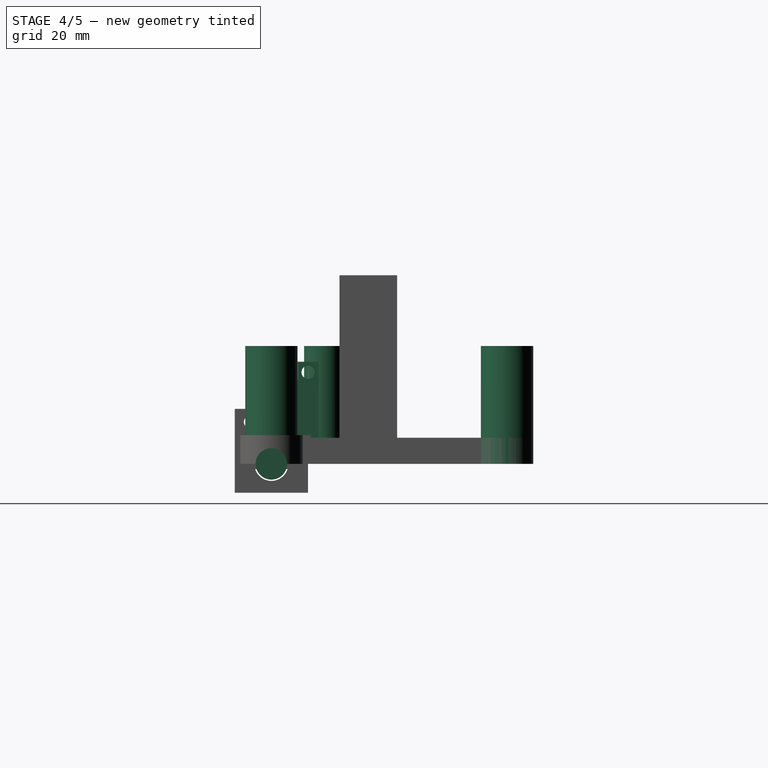
[diagram: stage 4 of 5 — right view after this stage's code; geometry added in this stage tinted green]
FEATURE [Part::Cylinder] Cylinder049  label="Cilindro049"
  Angle = 360
  AttacherType = Attacher::AttachEngine3D
  Height = 45
  Placement = pos=(0,20,0) rot=(0,0,1;0rad)
  Radius = 7.5
FEATURE [Part::Cylinder] Cylinder050  label="Cilindro050"
  Angle = 360
  AttacherType = Attacher::AttachEngine3D
  Height = 45
  Placement = pos=(0,20,0) rot=(0,0,1;0rad)
  Radius = 7.5
FEATURE [Part::Cylinder] Cylinder051  label="Cilindro051"
  Angle = 360
  AttacherType = Attacher::AttachEngine3D
  Height = 45
  Placement = pos=(0,20,0) rot=(0,0,1;0rad)
  Radius = 10
FEATURE [Part::Cut] Cut038  label="unionbarra015"
  Base = -> Cylinder051
  Placement = pos=(97,-20,0) rot=(0,0,1;0rad)
  Tool = -> Cylinder049
FEATURE [Part::Cylinder] Cylinder052  label="Cilindro052"
  Angle = 360
  AttacherType = Attacher::AttachEngine3D
  Height = 45
  Placement = pos=(0,20,0) rot=(0,0,1;0rad)
  Radius = 10
FEATURE [Part::Cylinder] Cylinder053  label="Cilindro053"
  Angle = 360
  AttacherType = Attacher::AttachEngine3D
  Height = 45
  Placement = pos=(0,20,0) rot=(0,0,1;0rad)
  Radius = 7.5
FEATURE [Part::Cut] Cut040  label="unionbarra016"
  Base = -> Cylinder052
  Placement = pos=(-97,-20,0) rot=(0,0,1;0rad)
  Tool = -> Cylinder053
FEATURE [Part::Cylinder] Cylinder054  label="Cilindro054"
  Angle = 360
  AttacherType = Attacher::AttachEngine3D
  Height = 45
  Placement = pos=(0,20,0) rot=(0,0,1;0rad)
  Radius = 7.5
FEATURE [Part::Cylinder] Cylinder055  label="Cilindro055"
  Angle = 360
  AttacherType = Attacher::AttachEngine3D
  Height = 45
  Placement = pos=(0,20,0) rot=(0,0,1;0rad)
  Radius = 10
FEATURE [Part::Cut] Cut042  label="unionbarra017"
  Base = -> Cylinder055
  Placement = pos=(97,-20,0) rot=(0,0,1;0rad)
  Tool = -> Cylinder054
FEATURE [Part::Fuse] Fusion018
  Base = -> Cut042
  Placement = pos=(0,90,0) rot=(0,0,1;0rad)
  Tool = -> Cut040
FEATURE [Part::Box] Box021  label="Cubo019"
  AttacherType = Attacher::AttachEngine3D
  Height = 8
  Length = 5
  Width = 8
FEATURE [Part::Cylinder] Cylinder056  label="Cilindro056"
  Angle = 360
  AttacherType = Attacher::AttachEngine3D
  Height = 10
  Placement = pos=(-3,4,4) rot=(0,1,0;1.5708rad)
  Radius = 2.5
FEATURE [Part::Cut] Cut044  label="agarre"
  Base = -> Box021
  Placement = pos=(85,10,15) rot=(0,0,1;0rad)
  Tool = -> Cylinder056
FEATURE [Part::Box] Box022  label="Cubo020"
  AttacherType = Attacher::AttachEngine3D
  Height = 8
  Length = 5
  Width = 8
FEATURE [Part::Cylinder] Cylinder057  label="Cilindro057"
  Angle = 360
  AttacherType = Attacher::AttachEngine3D
  Height = 10
  Placement = pos=(-3,4,4) rot=(0,1,0;1.5708rad)
  Radius = 2.5
FEATURE [Part::Cut] Cut045  label="agarre001"
  Base = -> Box022
  Placement = pos=(85,10,31) rot=(0,0,1;0rad)
  Tool = -> Cylinder057
FEATURE [Part::Cylinder] Cylinder058  label="Cilindro058"
  Angle = 360
  AttacherType = Attacher::AttachEngine3D
  Height = 2
  Placement = pos=(97,0,0) rot=(0,0,1;0rad)
  Radius = 10
FEATURE [Part::Cylinder] Cylinder059  label="Cilindro059"
  Angle = 360
  AttacherType = Attacher::AttachEngine3D
  Height = 2
  Placement = pos=(-97,90,0) rot=(0,0,1;0rad)
  Radius = 10
FEATURE [Part::Cylinder] Cylinder060  label="Cilindro060"
  Angle = 360
  AttacherType = Attacher::AttachEngine3D
  Height = 2
  Placement = pos=(97,90,0) rot=(0,0,1;0rad)
  Radius = 10
FEATURE [Part::Cylinder] Cylinder062  label="Cilindro062"
  Angle = 360
  AttacherType = Attacher::AttachEngine3D
  Height = 130
  Placement = pos=(0,0,0) rot=(0,1,0;1.5708rad)
  Radius = 6
FEATURE [Part::Box] Box023  label="Cubo021"
  AttacherType = Attacher::AttachEngine3D
  Height = 22
  Length = 10
  Placement = pos=(-2,-11,-11) rot=(0,0,1;0rad)
  Width = 22
FEATURE [Part::Box] Box024  label="Cubo022"
  AttacherType = Attacher::AttachEngine3D
  Height = 22
  Length = 10
  Placement = pos=(122,-11,-11) rot=(0,0,1;0rad)
  Width = 22
FEATURE [Part::Cylinder] Cylinder063  label="Cilindro063"
  Angle = 360
  AttacherType = Attacher::AttachEngine3D
  Height = 130
  Placement = pos=(0,0,0) rot=(0,1,0;1.5708rad)
  Radius = 6.5
FEATURE [Part::MultiFuse] Fusion021
  Shapes = -> [Box023,Box024]
FEATURE [Part::Cut] Cut046
  Base = -> Fusion021
  Tool = -> Cylinder063
FEATURE [Part::Cylinder] Cylinder064  label="Cilindro064"
  Angle = 360
  AttacherType = Attacher::AttachEngine3D
  Height = 5
  Radius = 2.5
FEATURE [Part::Cylinder] Cylinder065  label="Cilindro065"
  Angle = 360
  AttacherType = Attacher::AttachEngine3D
  Height = 2
  Placement = pos=(0,0,5) rot=(0,0,1;0rad)
  Radius = 2.6
FEATURE [Part::MultiFuse] Fusion022  label="enganche_lego"
  Shapes = -> [Cylinder064,Cylinder065]
FEATURE [Part::Cylinder] Cylinder066  label="Cilindro066"
  Angle = 360
  AttacherType = Attacher::AttachEngine3D
  Height = 2
  Placement = pos=(0,0,5) rot=(0,0,1;0rad)
  Radius = 2.6
FEATURE [Part::Cylinder] Cylinder067  label="Cilindro067"
  Angle = 360
  AttacherType = Attacher::AttachEngine3D
  Height = 5
  Radius = 2.5
FEATURE [Part::MultiFuse] Fusion023  label="enganche_lego001"
  Placement = pos=(3,-8,-11) rot=(0,0,1;0rad)
  Shapes = -> [Cylinder067,Cylinder066]
FEATURE [Part::Cylinder] Cylinder068  label="Cilindro068"
  Angle = 360
  AttacherType = Attacher::AttachEngine3D
  Height = 5
  Radius = 2.5
FEATURE [Part::Cylinder] Cylinder069  label="Cilindro069"
  Angle = 360
  AttacherType = Attacher::AttachEngine3D
  Height = 2
  Placement = pos=(0,0,5) rot=(0,0,1;0rad)
  Radius = 2.6
FEATURE [Part::MultiFuse] Fusion024  label="enganche_lego002"
  Placement = pos=(3,8,-11) rot=(0,0,1;0rad)
  Shapes = -> [Cylinder068,Cylinder069]
FEATURE [Part::Cylinder] Cylinder070  label="Cilindro070"
  Angle = 360
  AttacherType = Attacher::AttachEngine3D
  Height = 5
  Radius = 2.5
FEATURE [Part::Cylinder] Cylinder071  label="Cilindro071"
  Angle = 360
  AttacherType = Attacher::AttachEngine3D
  Height = 2
  Placement = pos=(0,0,5) rot=(0,0,1;0rad)
  Radius = 2.6
FEATURE [Part::MultiFuse] Fusion025  label="enganche_lego003"
  Placement = pos=(127,8,-11) rot=(0,0,1;0rad)
  Shapes = -> [Cylinder070,Cylinder071]
FEATURE [Part::Cylinder] Cylinder072  label="Cilindro072"
  Angle = 360
  AttacherType = Attacher::AttachEngine3D
  Height = 5
  Radius = 2.5
FEATURE [Part::Cylinder] Cylinder073  label="Cilindro073"
  Angle = 360
  AttacherType = Attacher::AttachEngine3D
  Height = 2
  Placement = pos=(0,0,5) rot=(0,0,1;0rad)
  Radius = 2.6
FEATURE [Part::MultiFuse] Fusion026  label="enganche_lego004"
  Placement = pos=(127,-8,-11) rot=(0,0,1;0rad)
  Shapes = -> [Cylinder072,Cylinder073]
FEATURE [Part::MultiFuse] Fusion027
  Shapes = -> [Fusion023,Fusion024,Fusion025,Fusion026]
FEATURE [Part::Cut] Cut047  label="lim_barra"
  Base = -> Cut046
  Placement = pos=(-65,7,21) rot=(0,0,1;0rad)
  Tool = -> Fusion027
FEATURE [Part::Cylinder] Cylinder082  label="Cilindro082"
  Angle = 360
  AttacherType = Attacher::AttachEngine3D
  Height = 10
  Placement = pos=(0,20,0) rot=(0,0,1;0rad)
  Radius = 10
FEATURE [Part::Cylinder] Cylinder083  label="Cilindro083"
  Angle = 360
  AttacherType = Attacher::AttachEngine3D
  Height = 10
  Placement = pos=(0,20,0) rot=(0,0,1;0rad)
  Radius = 6.5
FEATURE [Part::Cylinder] Cylinder084  label="Cilindro084"
  Angle = 360
  AttacherType = Attacher::AttachEngine3D
  Height = 10
  Placement = pos=(0,20,0) rot=(0,0,1;0rad)
  Radius = 6.5
FEATURE [Part::Box] Box025  label="barra007"
  AttacherType = Attacher::AttachEngine3D
  Height = 10
  Length = 177
  Placement = pos=(-88.5,-5,0) rot=(0,0,1;0rad)
  Width = 100
FEATURE [Part::Cylinder] Cylinder085  label="Cilindro085"
  Angle = 360
  AttacherType = Attacher::AttachEngine3D
  Height = 10
  Placement = pos=(0,20,0) rot=(0,0,1;0rad)
  Radius = 10
FEATURE [Part::Cut] Cut049  label="unionbarra018"
  Base = -> Cylinder082
  Placement = pos=(-97,-20,0) rot=(0,0,1;0rad)
  Tool = -> Cylinder084
FEATURE [Part::Cut] Cut050  label="unionbarra019"
  Base = -> Cylinder085
  Placement = pos=(97,-20,0) rot=(0,0,1;0rad)
  Tool = -> Cylinder083
FEATURE [Part::Fuse] Fusion033
  Base = -> Cut050
  Tool = -> Cut049
FEATURE [Part::Cylinder] Cylinder086  label="Cilindro086"
  Angle = 360
  AttacherType = Attacher::AttachEngine3D
  Height = 10
  Placement = pos=(0,20,0) rot=(0,0,1;0rad)
  Radius = 10
FEATURE [Part::Cylinder] Cylinder087  label="Cilindro087"
  Angle = 360
  AttacherType = Attacher::AttachEngine3D
  Height = 10
  Placement = pos=(0,20,0) rot=(0,0,1;0rad)
  Radius = 6.5
FEATURE [Part::Cut] Cut051  label="unionbarra020"
  Base = -> Cylinder086
  Placement = pos=(-97,-20,0) rot=(0,0,1;0rad)
  Tool = -> Cylinder087
FEATURE [Part::Cylinder] Cylinder088  label="Cilindro088"
  Angle = 360
  AttacherType = Attacher::AttachEngine3D
  Height = 10
  Placement = pos=(0,20,0) rot=(0,0,1;0rad)
  Radius = 6.5
FEATURE [Part::Cylinder] Cylinder089  label="Cilindro089"
  Angle = 360
  AttacherType = Attacher::AttachEngine3D
  Height = 10
  Placement = pos=(0,20,0) rot=(0,0,1;0rad)
  Radius = 10
FEATURE [Part::Cut] Cut052  label="unionbarra021"
  Base = -> Cylinder089
  Placement = pos=(97,-20,0) rot=(0,0,1;0rad)
  Tool = -> Cylinder088
FEATURE [Part::Fuse] Fusion034
  Base = -> Cut052
  Placement = pos=(0,90,0) rot=(0,0,1;0rad)
  Tool = -> Cut051
FEATURE [Part::Cylinder] Cylinder090  label="Cilindro090"
  Angle = 360
  AttacherType = Attacher::AttachEngine3D
  Height = 2
  Placement = pos=(-97,0,0) rot=(0,0,1;0rad)
  Radius = 10
FEATURE [Part::Cylinder] Cylinder091  label="Cilindro091"
  Angle = 360
  AttacherType = Attacher::AttachEngine3D
  Height = 2
  Placement = pos=(-97,90,0) rot=(0,0,1;0rad)
  Radius = 10
FEATURE [Part::MultiFuse] Fusion035  label="placa_fija_arriba"
  Shapes = -> [Cylinder092,Cylinder093,Cylinder091,Cylinder090,Fusion034,Fusion033,Box025,Cut047]
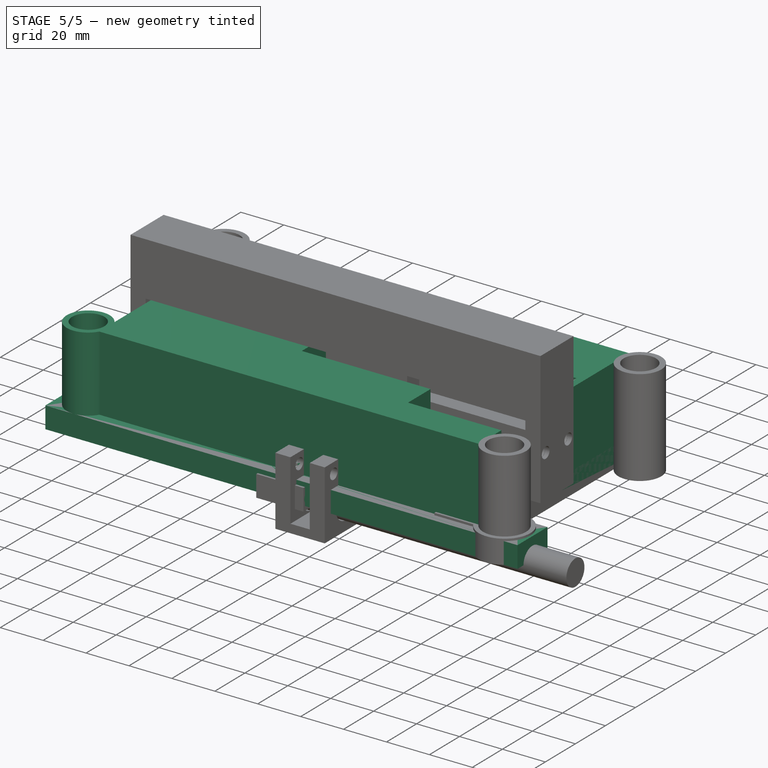
[diagram: stage 5 of 5 — iso view after this stage's code; geometry added in this stage tinted green]
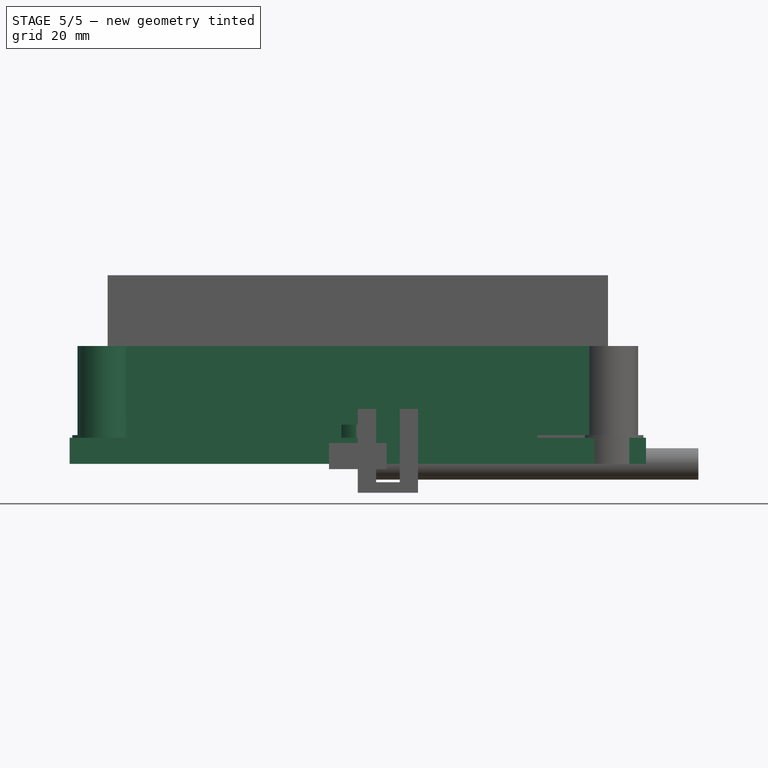
[diagram: stage 5 of 5 — front view after this stage's code; geometry added in this stage tinted green]
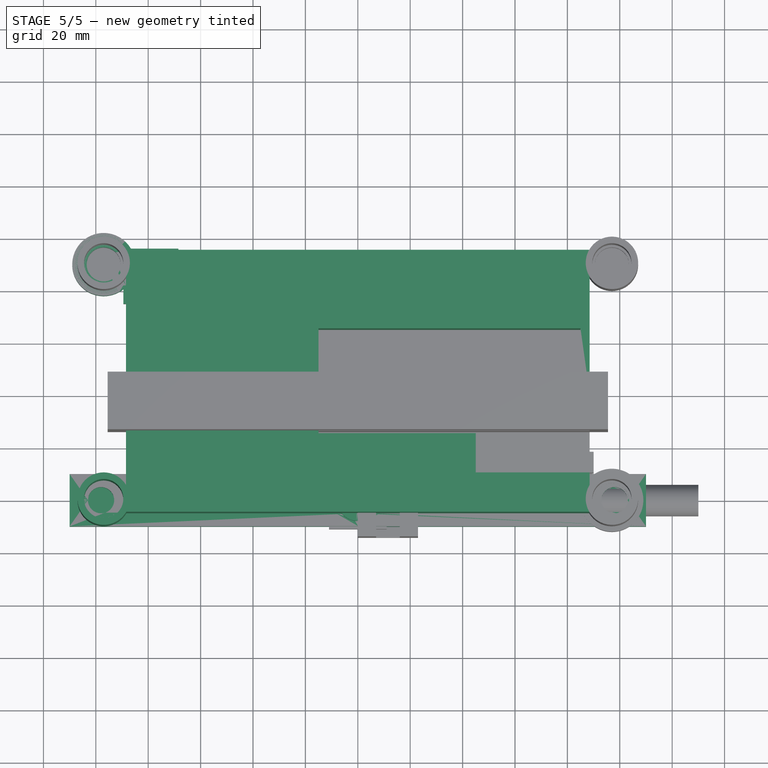
[diagram: stage 5 of 5 — top view after this stage's code; geometry added in this stage tinted green]
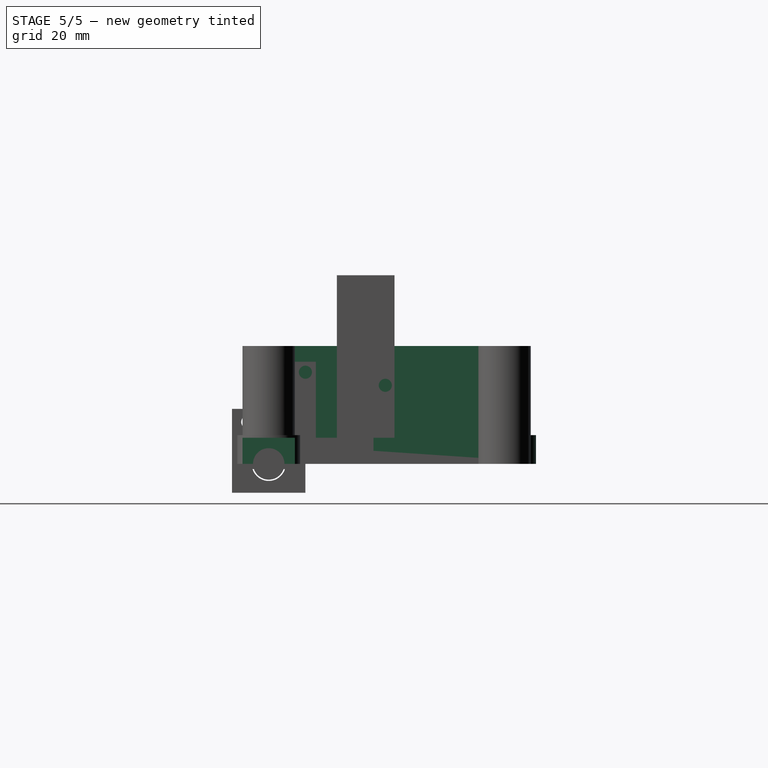
[diagram: stage 5 of 5 — right view after this stage's code; geometry added in this stage tinted green]
FEATURE [Part::Box] Box002  label="Cubo"
  AttacherType = Attacher::AttachEngine3D
  Height = 10
  Length = 220
  Placement = pos=(-110,-10,0) rot=(0,0,1;0rad)
  Width = 20
FEATURE [Part::Cylinder] Cylinder005  label="Cilindro005"
  Angle = 360
  AttacherType = Attacher::AttachEngine3D
  Height = 10
  Placement = pos=(98,0,4) rot=(0,0,1;0rad)
  Radius = 5
FEATURE [Part::Cylinder] Cylinder004  label="Cilindro004"
  Angle = 360
  AttacherType = Attacher::AttachEngine3D
  Height = 10
  Placement = pos=(-98,0,4) rot=(0,0,1;0rad)
  Radius = 5
FEATURE [Part::Cut] Cut004
  Base = -> Box002
  Tool = -> Cylinder005
FEATURE [Part::Cut] Cut005  label="sujeto"
  Base = -> Cut004
  Tool = -> Cylinder004
FEATURE [Part::Cylinder] Cylinder  label="Cilindro"
  Angle = 360
  AttacherType = Attacher::AttachEngine3D
  Height = 10
  Radius = 5
FEATURE [Part::Cut] Cut  label="sujeto001"
  Base = -> Cut005
  Tool = -> Cylinder
FEATURE [Sketcher::SketchObject] Sketch
  FullyConstrained = true
  MapMode = 5
  Support = -> [XY_Plane]
  sketch-geometry (7):
    g0: LineSegment StartX=0 StartY=7.50555 StartZ=0 EndX=-6.5 EndY=3.75278 EndZ=0
    g1: LineSegment StartX=-6.5 StartY=3.75278 StartZ=0 EndX=-6.5 EndY=-3.75278 EndZ=0
    g2: LineSegment StartX=-6.5 StartY=-3.75278 StartZ=0 EndX=-4.44791e-11 EndY=-7.50555 EndZ=0
    g3: LineSegment StartX=-4.44789e-11 StartY=-7.50555 StartZ=0 EndX=6.5 EndY=-3.75278 EndZ=0
    g4: LineSegment StartX=6.5 StartY=-3.75278 StartZ=0 EndX=6.5 EndY=3.75278 EndZ=0
    g5: LineSegment StartX=6.5 StartY=3.75278 StartZ=0 EndX=0 EndY=7.50555 EndZ=0
    g6: Circle CenterX=0 CenterY=0 CenterZ=0 NormalX=0 NormalY=0 NormalZ=1 AngleXU=0 Radius=7.50555
  constraints (16):
    c: Coincident(g0,g1)
    c: Coincident(g1,g2)
    c: Coincident(g2,g3)
    c: Coincident(g3,g4)
    c: Coincident(g4,g5)
    c: Coincident(g5,g0)
    c: Equal(g0, g1-g5) x5
    c: PointOnObject(g0,g6)
    c: PointOnObject(g1,g6)
    c: PointOnObject(g2,g6)
    c: PointOnObject(g3,g6)
    c: PointOnObject(g4,g6)
    c: PointOnObject(g5,g6)
    c: Coincident(g6,g-1)
    c: PointOnObject(g5,g-2)
    c: DistanceX(g0,g4) = 13
FEATURE [Sketcher::SketchObject] Sketch002
  FullyConstrained = true
  MapMode = 5
  Support = -> [XY_Plane001]
  sketch-geometry (7):
    g0: LineSegment StartX=0 StartY=9.81495 StartZ=0 EndX=-8.5 EndY=4.90748 EndZ=0
    g1: LineSegment StartX=-8.5 StartY=4.90748 StartZ=0 EndX=-8.5 EndY=-4.90748 EndZ=0
    g2: LineSegment StartX=-8.5 StartY=-4.90748 StartZ=0 EndX=-8.1855e-12 EndY=-9.81495 EndZ=0
    g3: LineSegment StartX=-8.1855e-12 StartY=-9.81495 StartZ=0 EndX=8.5 EndY=-4.90748 EndZ=0
    g4: LineSegment StartX=8.5 StartY=-4.90748 StartZ=0 EndX=8.5 EndY=4.90748 EndZ=0
    g5: LineSegment StartX=8.5 StartY=4.90748 StartZ=0 EndX=0 EndY=9.81495 EndZ=0
    g6: Circle CenterX=0 CenterY=0 CenterZ=0 NormalX=0 NormalY=0 NormalZ=1 AngleXU=0 Radius=9.81495
  constraints (16):
    c: Coincident(g0,g1)
    c: Coincident(g1,g2)
    c: Coincident(g2,g3)
    c: Coincident(g3,g4)
    c: Coincident(g4,g5)
    c: Coincident(g5,g0)
    c: Equal(g0, g1-g5) x5
    c: PointOnObject(g0,g6)
    c: PointOnObject(g1,g6)
    c: PointOnObject(g2,g6)
    c: PointOnObject(g3,g6)
    c: PointOnObject(g4,g6)
    c: PointOnObject(g5,g6)
    c: Coincident(g6,g-1)
    c: PointOnObject(g5,g-2)
    c: DistanceX(g0,g4) = 17
FEATURE [PartDesign::Pad] Pad  label="interior_tuerca001"
  Direction = (0,0,1)
  Length = 6.5
  Length2 = 10
  Profile = -> Sketch
  Type = 0
FEATURE [Sketcher::SketchObject] Sketch001
  FullyConstrained = true
  MapMode = 5
  Placement = pos=(0,0,6.5) rot=(0,0,1;0rad)
  Support = -> [Pad]
  sketch-geometry (7):
    g0: LineSegment StartX=0 StartY=5.7735 StartZ=0 EndX=-5 EndY=2.88675 EndZ=0
    g1: LineSegment StartX=-5 StartY=2.88675 StartZ=0 EndX=-5 EndY=-2.88675 EndZ=0
    g2: LineSegment StartX=-5 StartY=-2.88675 StartZ=0 EndX=-2.33698e-11 EndY=-5.7735 EndZ=0
    g3: LineSegment StartX=-2.33698e-11 StartY=-5.7735 StartZ=0 EndX=5 EndY=-2.88675 EndZ=0
    g4: LineSegment StartX=5 StartY=-2.88675 StartZ=0 EndX=5 EndY=2.88675 EndZ=0
    g5: LineSegment StartX=5 StartY=2.88675 StartZ=0 EndX=0 EndY=5.7735 EndZ=0
    g6: Circle CenterX=0 CenterY=0 CenterZ=0 NormalX=0 NormalY=0 NormalZ=1 AngleXU=0 Radius=5.7735
  constraints (16):
    c: Coincident(g0,g1)
    c: Coincident(g1,g2)
    c: Coincident(g2,g3)
    c: Coincident(g3,g4)
    c: Coincident(g4,g5)
    c: Coincident(g5,g0)
    c: Equal(g0, g1-g5) x5
    c: PointOnObject(g0,g6)
    c: PointOnObject(g1,g6)
    c: PointOnObject(g2,g6)
    c: PointOnObject(g3,g6)
    c: PointOnObject(g4,g6)
    c: PointOnObject(g5,g6)
    c: Coincident(g6,g-1)
    c: PointOnObject(g5,g-2)
    c: DistanceX(g0,g4) = 10
FEATURE [PartDesign::Pad] Pad002  label="exterior001"
  Direction = (0,0,1)
  Length = 10
  Length2 = 10
  Profile = -> Sketch002
  Type = 0
FEATURE [PartDesign::Body] Body001  label="Cuerpo001"
  Group = -> [Sketch002,Pad002]
  Origin = -> Origin001
  Tip = -> Pad002
FEATURE [PartDesign::Pad] Pad001  label="interior tubo001"
  BaseFeature = -> Pad
  Direction = (0,0,1)
  Length = 4
  Length2 = 10
  Profile = -> Sketch001
  Type = 0
FEATURE [PartDesign::Body] Body  label="Cuerpo"
  Group = -> [Sketch,Pad,Sketch001,Pad001]
  Origin = -> Origin
  Tip = -> Pad001
FEATURE [Part::Cut] Cut009  label="sujetaTuercaM-009"
  Base = -> Body001
  Tool = -> Body
FEATURE [Part::Cylinder] Cylinder010  label="Cilindro010"
  Angle = 360
  AttacherType = Attacher::AttachEngine3D
  Height = 15
  Placement = pos=(0,0,10) rot=(0,0,1;0rad)
  Radius = 5
FEATURE [Sketcher::SketchObject] Sketch006
  FullyConstrained = true
  MapMode = 5
  Support = -> [XY_Plane004]
  sketch-geometry (20):
    g0: LineSegment StartX=0 StartY=0 StartZ=0 EndX=0 EndY=2.5 EndZ=0
    g1: LineSegment StartX=0 StartY=0 StartZ=0 EndX=-2.5 EndY=0 EndZ=0
    g2: LineSegment StartX=0 StartY=0 StartZ=0 EndX=2.5 EndY=0 EndZ=0
    g3: LineSegment StartX=0 StartY=0 StartZ=0 EndX=0 EndY=-2.5 EndZ=0
    g4: LineSegment StartX=0 StartY=-2.5 StartZ=0 EndX=-1 EndY=-2.5 EndZ=0
    g5: LineSegment StartX=0 StartY=-2.5 StartZ=0 EndX=1 EndY=-2.5 EndZ=0
    g6: LineSegment StartX=-2.5 StartY=0 StartZ=0 EndX=-2.5 EndY=1 EndZ=0
    g7: LineSegment StartX=-2.5 StartY=0 StartZ=0 EndX=-2.5 EndY=-1 EndZ=0
    g8: LineSegment StartX=0 StartY=2.5 StartZ=0 EndX=-1 EndY=2.5 EndZ=0
    g9: LineSegment StartX=0 StartY=2.5 StartZ=0 EndX=1 EndY=2.5 EndZ=0
    g10: LineSegment StartX=2.5 StartY=0 StartZ=0 EndX=2.5 EndY=1 EndZ=0
    g11: LineSegment StartX=2.5 StartY=0 StartZ=0 EndX=2.5 EndY=-1 EndZ=0
    g12: LineSegment StartX=-2.5 StartY=1 StartZ=0 EndX=-1 EndY=1 EndZ=0
    g13: LineSegment StartX=1 StartY=2.5 StartZ=0 EndX=1 EndY=1 EndZ=0
    g14: LineSegment StartX=-1 StartY=2.5 StartZ=0 EndX=-1 EndY=1 EndZ=0
    g15: LineSegment StartX=-2.5 StartY=-1 StartZ=0 EndX=-1 EndY=-1 EndZ=0
    g16: LineSegment StartX=-1 StartY=-2.5 StartZ=0 EndX=-1 EndY=-1 EndZ=0
    g17: LineSegment StartX=2.5 StartY=-1 StartZ=0 EndX=1 EndY=-1 EndZ=0
    g18: LineSegment StartX=1 StartY=-2.5 StartZ=0 EndX=1 EndY=-1 EndZ=0
    g19: LineSegment StartX=2.5 StartY=1 StartZ=0 EndX=1 EndY=1 EndZ=0
  constraints (56):
    c: Coincident(g0,g-1)
    c: PointOnObject(g0,g-2)
    c: Coincident(g1,g-1)
    c: PointOnObject(g1,g-1)
    c: Coincident(g2,g-1)
    c: PointOnObject(g2,g-1)
    c: Coincident(g3,g-1)
    c: PointOnObject(g3,g-2)
    c: DistanceX(g1,g1) = 2.5
    c: DistanceX(g2,g2) = 2.5
    c: DistanceY(g0,g0) = 2.5
    c: DistanceY(g3,g3) = 2.5
    c: Coincident(g4,g3)
    c: Horizontal(g4)
    c: Coincident(g5,g4)
    c: Horizontal(g5)
    c: DistanceX(g4,g4) = 1
    c: DistanceX(g5,g5) = 1
    c: Coincident(g6,g1)
    c: Vertical(g6)
    c: Coincident(g7,g6)
    c: Vertical(g7)
    c: Coincident(g8,g0)
    c: Horizontal(g8)
    c: Coincident(g9,g8)
    c: Coincident(g10,g2)
    c: Vertical(g10)
    c: Coincident(g11,g10)
    c: Vertical(g11)
    c: Horizontal(g9)
    c: DistanceX(g8,g8) = 1
    c: DistanceX(g9,g9) = 1
    c: DistanceY(g10,g10) = 1
    c: DistanceY(g11,g11) = 1
    c: DistanceY(g7,g7) = 1
    c: DistanceY(g6,g6) = 1
    c: Coincident(g12,g6)
    c: Horizontal(g12)
    c: Coincident(g13,g9)
    c: Vertical(g13)
    c: Coincident(g14,g8)
    c: Coincident(g14,g12)
    c: Vertical(g14)
    c: Coincident(g15,g7)
    c: Horizontal(g15)
    c: Coincident(g16,g4)
    c: Coincident(g16,g15)
    c: Vertical(g16)
    c: Coincident(g17,g11)
    c: Horizontal(g17)
    c: Coincident(g18,g5)
    c: Coincident(g18,g17)
    c: Vertical(g18)
    c: Coincident(g19,g10)
    c: Coincident(g19,g13)
    c: Horizontal(g19)
FEATURE [PartDesign::Pad] Pad006
  Direction = (1,1,1)
  Length = 10
  Length2 = 100
  Profile = -> Sketch006
  Type = 0
FEATURE [PartDesign::Body] Body004
  Group = -> [Sketch006,Pad006]
  Origin = -> Origin004
  Placement = pos=(0,0,15) rot=(0,0,1;0rad)
  Tip = -> Pad006
FEATURE [Part::Cut] Cut010
  Base = -> Cylinder010
  Tool = -> Body004
FEATURE [Part::Cylinder] Cylinder011  label="Cilindro011"
  Angle = 360
  AttacherType = Attacher::AttachEngine3D
  Height = 5
  Placement = pos=(0,0,10) rot=(0,0,1;0rad)
  Radius = 8
FEATURE [Part::MultiFuse] Fusion004  label="union_motor"
  Shapes = -> [Cylinder011,Cut010,Cut009]
FEATURE [Part::Cylinder] Cylinder029  label="Cilindro029"
  Angle = 360
  AttacherType = Attacher::AttachEngine3D
  Height = 10
  Placement = pos=(0,20,0) rot=(0,0,1;0rad)
  Radius = 7.5
FEATURE [Part::FeaturePython] Tube001  # WARN: FeaturePython — macro-defined, semantics opaque (R4)
  AttacherType = Attacher::AttachEngine3D
  Height = 10
  InnerRadius = 10.1
  OuterRadius = 12
  Placement = pos=(-97,0,0) rot=(0,0,1;0rad)
FEATURE [Part::Cylinder] Cylinder030  label="Cilindro030"
  Angle = 360
  AttacherType = Attacher::AttachEngine3D
  Height = 11
  Placement = pos=(-83,10,0) rot=(0,0,1;0rad)
  Radius = 2.5
FEATURE [Part::Cylinder] Cylinder031  label="Cilindro031"
  Angle = 360
  AttacherType = Attacher::AttachEngine3D
  Height = 11
  Placement = pos=(-75,0,0) rot=(0,0,1;0rad)
  Radius = 2.5
FEATURE [Part::Cylinder] Cylinder032  label="Cilindro032"
  Angle = 360
  AttacherType = Attacher::AttachEngine3D
  Height = 10
  Placement = pos=(0,20,0) rot=(0,0,1;0rad)
  Radius = 10
FEATURE [Part::Cylinder] Cylinder033  label="Cilindro033"
  Angle = 360
  AttacherType = Attacher::AttachEngine3D
  Height = 10
  Placement = pos=(0,20,0) rot=(0,0,1;0rad)
  Radius = 10
FEATURE [Part::Cylinder] Cylinder034  label="Cilindro034"
  Angle = 360
  AttacherType = Attacher::AttachEngine3D
  Height = 10
  Placement = pos=(0,20,0) rot=(0,0,1;0rad)
  Radius = 7.5
FEATURE [Part::Cylinder] Cylinder035  label="Cilindro035"
  Angle = 360
  AttacherType = Attacher::AttachEngine3D
  Height = 1
  Placement = pos=(-97,0,10) rot=(0,0,1;0rad)
  Radius = 12
FEATURE [Part::Box] Box008  label="Cubo004"
  AttacherType = Attacher::AttachEngine3D
  Height = 11
  Length = 1
  Placement = pos=(-89.5,8,0) rot=(0,0,1;0rad)
  Width = 7
FEATURE [Part::Cylinder] Cylinder036  label="Cilindro036"
  Angle = 360
  AttacherType = Attacher::AttachEngine3D
  Height = 10
  Placement = pos=(0,20,0) rot=(0,0,1;0rad)
  Radius = 7.5
FEATURE [Part::Box] Box009  label="Cubo005"
  AttacherType = Attacher::AttachEngine3D
  Height = 11
  Length = 19
  Placement = pos=(-87.5,-6,0) rot=(0,0,1;0rad)
  Width = 1
FEATURE [Part::Cylinder] Cylinder037  label="Cilindro037"
  Angle = 360
  AttacherType = Attacher::AttachEngine3D
  Height = 10
  Placement = pos=(0,20,0) rot=(0,0,1;0rad)
  Radius = 10
FEATURE [Part::Cut] Cut030  label="unionbarra012"
  Base = -> Cylinder037
  Placement = pos=(-97,-20,0) rot=(0,0,1;0rad)
  Tool = -> Cylinder034
FEATURE [Part::Box] Box010  label="Cubo006"
  AttacherType = Attacher::AttachEngine3D
  Height = 1
  Length = 20
  Placement = pos=(-88.5,-5,10) rot=(0,0,1;0rad)
  Width = 20
FEATURE [Part::Box] Box011  label="barra005"
  AttacherType = Attacher::AttachEngine3D
  Height = 10
  Length = 177
  Placement = pos=(-88.5,-5,0) rot=(0,0,1;0rad)
  Width = 100
FEATURE [Sketcher::SketchObject] Sketch012
  FullyConstrained = true
  MapMode = 5
  Support = -> [XY_Plane009]
  sketch-geometry (7):
    g0: LineSegment StartX=0 StartY=9.81495 StartZ=0 EndX=-8.5 EndY=4.90748 EndZ=0
    g1: LineSegment StartX=-8.5 StartY=4.90748 StartZ=0 EndX=-8.5 EndY=-4.90748 EndZ=0
    g2: LineSegment StartX=-8.5 StartY=-4.90748 StartZ=0 EndX=-8.1855e-12 EndY=-9.81495 EndZ=0
    g3: LineSegment StartX=-8.1855e-12 StartY=-9.81495 StartZ=0 EndX=8.5 EndY=-4.90748 EndZ=0
    g4: LineSegment StartX=8.5 StartY=-4.90748 StartZ=0 EndX=8.5 EndY=4.90748 EndZ=0
    g5: LineSegment StartX=8.5 StartY=4.90748 StartZ=0 EndX=0 EndY=9.81495 EndZ=0
    g6: Circle CenterX=0 CenterY=0 CenterZ=0 NormalX=0 NormalY=0 NormalZ=1 AngleXU=0 Radius=9.81495
  constraints (16):
    c: Coincident(g0,g1)
    c: Coincident(g1,g2)
    c: Coincident(g2,g3)
    c: Coincident(g3,g4)
    c: Coincident(g4,g5)
    c: Coincident(g5,g0)
    c: Equal(g0, g1-g5) x5
    c: PointOnObject(g0,g6)
    c: PointOnObject(g1,g6)
    c: PointOnObject(g2,g6)
    c: PointOnObject(g3,g6)
    c: PointOnObject(g4,g6)
    c: PointOnObject(g5,g6)
    c: Coincident(g6,g-1)
    c: PointOnObject(g5,g-2)
    c: DistanceX(g0,g4) = 17
FEATURE [PartDesign::Pad] Pad014  label="exterior003"
  Direction = (0,0,1)
  Length = 10
  Length2 = 10
  Profile = -> Sketch012
  Type = 0
FEATURE [Sketcher::SketchObject] Sketch013
  FullyConstrained = true
  MapMode = 5
  Support = -> [XY_Plane011]
  sketch-geometry (7):
    g0: LineSegment StartX=8.5 StartY=4.90748 StartZ=0 EndX=-1.8e-15 EndY=9.81495 EndZ=0
    g1: LineSegment StartX=-1.8e-15 StartY=9.81495 StartZ=0 EndX=-8.5 EndY=4.90748 EndZ=0
    g2: LineSegment StartX=-8.5 StartY=4.90748 StartZ=0 EndX=-8.5 EndY=-4.90748 EndZ=0
    g3: LineSegment StartX=-8.5 StartY=-4.90748 StartZ=0 EndX=0 EndY=-9.81495 EndZ=0
    g4: LineSegment StartX=0 StartY=-9.81495 StartZ=0 EndX=8.5 EndY=-4.90748 EndZ=0
    g5: LineSegment StartX=8.5 StartY=-4.90748 StartZ=0 EndX=8.5 EndY=4.90748 EndZ=0
    g6: Circle CenterX=0 CenterY=0 CenterZ=0 NormalX=0 NormalY=0 NormalZ=1 AngleXU=0 Radius=9.81495
  constraints (16):
    c: Coincident(g0,g1)
    c: Coincident(g1,g2)
    c: Coincident(g2,g3)
    c: Coincident(g3,g4)
    c: Coincident(g4,g5)
    c: Coincident(g5,g0)
    c: Equal(g0, g1-g5) x5
    c: PointOnObject(g0,g6)
    c: PointOnObject(g1,g6)
    c: PointOnObject(g2,g6)
    c: PointOnObject(g3,g6)
    c: PointOnObject(g4,g6)
    c: PointOnObject(g5,g6)
    c: Coincident(g6,g-1)
    c: Vertical(g2)
    c: DistanceX(g1,g0) = 17
FEATURE [PartDesign::Pad] Pad015
  Direction = (1,1,1)
  Length = 10
  Length2 = 100
  Profile = -> Sketch013
  Type = 0
FEATURE [Sketcher::SketchObject] Sketch014
  FullyConstrained = true
  MapMode = 5
  Support = -> [XY_Plane010]
  sketch-geometry (7):
    g0: LineSegment StartX=0 StartY=7.50555 StartZ=0 EndX=-6.5 EndY=3.75278 EndZ=0
    g1: LineSegment StartX=-6.5 StartY=3.75278 StartZ=0 EndX=-6.5 EndY=-3.75278 EndZ=0
    g2: LineSegment StartX=-6.5 StartY=-3.75278 StartZ=0 EndX=-4.44791e-11 EndY=-7.50555 EndZ=0
    g3: LineSegment StartX=-4.44789e-11 StartY=-7.50555 StartZ=0 EndX=6.5 EndY=-3.75278 EndZ=0
    g4: LineSegment StartX=6.5 StartY=-3.75278 StartZ=0 EndX=6.5 EndY=3.75278 EndZ=0
    g5: LineSegment StartX=6.5 StartY=3.75278 StartZ=0 EndX=0 EndY=7.50555 EndZ=0
    g6: Circle CenterX=0 CenterY=0 CenterZ=0 NormalX=0 NormalY=0 NormalZ=1 AngleXU=0 Radius=7.50555
  constraints (16):
    c: Coincident(g0,g1)
    c: Coincident(g1,g2)
    c: Coincident(g2,g3)
    c: Coincident(g3,g4)
    c: Coincident(g4,g5)
    c: Coincident(g5,g0)
    c: Equal(g0, g1-g5) x5
    c: PointOnObject(g0,g6)
    c: PointOnObject(g1,g6)
    c: PointOnObject(g2,g6)
    c: PointOnObject(g3,g6)
    c: PointOnObject(g4,g6)
    c: PointOnObject(g5,g6)
    c: Coincident(g6,g-1)
    c: PointOnObject(g5,g-2)
    c: DistanceX(g0,g4) = 13
FEATURE [PartDesign::Pad] Pad012  label="interior_tuerca003"
  Direction = (0,0,1)
  Length = 6.5
  Length2 = 10
  Profile = -> Sketch014
  Type = 0
FEATURE [Sketcher::SketchObject] Sketch015
  FullyConstrained = true
  MapMode = 5
  Placement = pos=(0,0,6.5) rot=(0,0,1;0rad)
  Support = -> [Pad012]
  sketch-geometry (7):
    g0: LineSegment StartX=0 StartY=5.7735 StartZ=0 EndX=-5 EndY=2.88675 EndZ=0
    g1: LineSegment StartX=-5 StartY=2.88675 StartZ=0 EndX=-5 EndY=-2.88675 EndZ=0
    g2: LineSegment StartX=-5 StartY=-2.88675 StartZ=0 EndX=-2.33698e-11 EndY=-5.7735 EndZ=0
    g3: LineSegment StartX=-2.33698e-11 StartY=-5.7735 StartZ=0 EndX=5 EndY=-2.88675 EndZ=0
    g4: LineSegment StartX=5 StartY=-2.88675 StartZ=0 EndX=5 EndY=2.88675 EndZ=0
    g5: LineSegment StartX=5 StartY=2.88675 StartZ=0 EndX=0 EndY=5.7735 EndZ=0
    g6: Circle CenterX=0 CenterY=0 CenterZ=0 NormalX=0 NormalY=0 NormalZ=1 AngleXU=0 Radius=5.7735
  constraints (16):
    c: Coincident(g0,g1)
    c: Coincident(g1,g2)
    c: Coincident(g2,g3)
    c: Coincident(g3,g4)
    c: Coincident(g4,g5)
    c: Coincident(g5,g0)
    c: Equal(g0, g1-g5) x5
    c: PointOnObject(g0,g6)
    c: PointOnObject(g1,g6)
    c: PointOnObject(g2,g6)
    c: PointOnObject(g3,g6)
    c: PointOnObject(g4,g6)
    c: PointOnObject(g5,g6)
    c: Coincident(g6,g-1)
    c: PointOnObject(g5,g-2)
    c: DistanceX(g0,g4) = 10
FEATURE [PartDesign::Pad] Pad013  label="interior tubo003"
  BaseFeature = -> Pad012
  Direction = (0,0,1)
  Length = 4
  Length2 = 10
  Profile = -> Sketch015
  Type = 0
FEATURE [Part::Cylinder] Cylinder038  label="Cilindro038"
  Angle = 360
  AttacherType = Attacher::AttachEngine3D
  Height = 10
  Placement = pos=(0,20,0) rot=(0,0,1;0rad)
  Radius = 10
FEATURE [Part::Cut] Cut028  label="unionbarra011"
  Base = -> Cylinder038
  Placement = pos=(-97,-20,0) rot=(0,0,1;0rad)
  Tool = -> Cylinder029
FEATURE [Part::Cylinder] Cylinder039  label="Cilindro039"
  Angle = 360
  AttacherType = Attacher::AttachEngine3D
  Height = 10
  Placement = pos=(0,20,0) rot=(0,0,1;0rad)
  Radius = 7.5
FEATURE [Part::Cut] Cut027  label="unionbarra010"
  Base = -> Cylinder032
  Placement = pos=(97,-20,0) rot=(0,0,1;0rad)
  Tool = -> Cylinder039
FEATURE [PartDesign::Body] Body009  label="Cuerpo006"
  Group = -> [Sketch014,Pad012,Sketch015,Pad013]
  Origin = -> Origin009
  Tip = -> Pad013
FEATURE [PartDesign::Body] Body010  label="Cuerpo007"
  Group = -> [Sketch012,Pad014]
  Origin = -> Origin010
  Tip = -> Pad014
FEATURE [Part::Cut] Cut029  label="sujetaTuercaM-011"
  Base = -> Body010
  Placement = pos=(0,45.1,0) rot=(0,0,1;0rad)
  Tool = -> Body009
FEATURE [PartDesign::Body] Body011
  Group = -> [Sketch013,Pad015]
  Origin = -> Origin011
  Placement = pos=(0,45.1,0) rot=(0,0,1;0rad)
  Tip = -> Pad015
FEATURE [Part::Cut] Cut026
  Base = -> Box011
  Tool = -> Body011
FEATURE [Part::Cut] Cut033  label="unionbarra013"
  Base = -> Cylinder033
  Placement = pos=(97,-20,0) rot=(0,0,1;0rad)
  Tool = -> Cylinder036
FEATURE [Part::Fuse] Fusion013
  Base = -> Cut033
  Placement = pos=(0,90,0) rot=(0,0,1;0rad)
  Tool = -> Cut030
FEATURE [Part::Fuse] Fusion014
  Base = -> Cut027
  Tool = -> Cut028
FEATURE [Part::MultiFuse] Fusion011
  Shapes = -> [Fusion013,Cut026,Fusion014,Cut029]
FEATURE [Part::Cut] Cut031
  Base = -> Tube001
  Tool = -> Fusion011
FEATURE [Part::MultiFuse] Fusion012
  Shapes = -> [Box009,Box008,Box010,Cylinder035,Cut031]
FEATURE [Part::Cut] Cut025
  Base = -> Fusion012
  Tool = -> Cylinder031
FEATURE [Part::Cut] Cut032
  Base = -> Cut025
  Placement = pos=(0,90,0) rot=(0,0,1;3.14159rad)
  Tool = -> Cylinder030
FEATURE [Part::Cylinder] Cylinder041  label="Cilindro041"
  Angle = 360
  AttacherType = Attacher::AttachEngine3D
  Height = 11
  Placement = pos=(97,90,0) rot=(0,0,1;0rad)
  Radius = 6.5
FEATURE [Part::Cut] Cut035  label="eng_arand_impar"
  Base = -> Cut032
  Tool = -> Cylinder041
FEATURE [Part::Mirroring] Part__Mirroring001  label="eng_arandela_par"
  Base = (0,0,0)
  Normal = (1,0,0)
  Source = -> Cut035
FEATURE [Part::Cylinder] Cylinder048  label="Cilindro048"
  Angle = 360
  AttacherType = Attacher::AttachEngine3D
  Height = 45
  Placement = pos=(0,20,0) rot=(0,0,1;0rad)
  Radius = 10
FEATURE [Part::Box] Box012  label="barra006"
  AttacherType = Attacher::AttachEngine3D
  Height = 45
  Length = 177
  Placement = pos=(-88.5,-5,0) rot=(0,0,1;0rad)
  Width = 100
FEATURE [Part::Cut] Cut037  label="unionbarra014"
  Base = -> Cylinder048
  Placement = pos=(-97,-20,0) rot=(0,0,1;0rad)
  Tool = -> Cylinder050
FEATURE [Part::Fuse] Fusion016
  Base = -> Cut038
  Tool = -> Cut037
FEATURE [Sketcher::SketchObject] Sketch020
  FullyConstrained = true
  MapMode = 5
  Support = -> [XY_Plane015]
  sketch-geometry (10):
    g0: LineSegment StartX=-25 StartY=15 StartZ=0 EndX=15 EndY=15 EndZ=0
    g1: LineSegment StartX=15 StartY=15 StartZ=0 EndX=15 EndY=-85 EndZ=0
    g2: LineSegment StartX=15 StartY=-85 StartZ=0 EndX=-10 EndY=-85 EndZ=0
    g3: LineSegment StartX=-10 StartY=-85 StartZ=0 EndX=-10 EndY=-125 EndZ=0
    g4: LineSegment StartX=-10 StartY=-125 StartZ=0 EndX=-40 EndY=-125 EndZ=0
    g5: LineSegment StartX=-40 StartY=-125 StartZ=0 EndX=-40 EndY=-45 EndZ=0
    g6: LineSegment StartX=-40 StartY=-45 StartZ=0 EndX=-25 EndY=-45 EndZ=0
    g7: LineSegment StartX=-25 StartY=-45 StartZ=0 EndX=-25 EndY=15 EndZ=0
    g8: LineSegment StartX=0 StartY=15 StartZ=0 EndX=0 EndY=0 EndZ=0
    g9: LineSegment StartX=15 StartY=0 StartZ=0 EndX=0 EndY=0 EndZ=0
  constraints (30):
    c: Horizontal(g0)
    c: Vertical(g1)
    c: Horizontal(g2)
    c: Vertical(g3)
    c: Coincident(g4,g3)
    c: Horizontal(g4)
    c: Coincident(g5,g4)
    c: Vertical(g5)
    c: Horizontal(g6)
    c: Coincident(g7,g0)
    c: DistanceX(g0,g0) = 40
    c: Coincident(g1,g0)
    c: Coincident(g1,g2)
    c: DistanceY(g1,g1) = 100
    c: Coincident(g2,g3)
    c: DistanceX(g2,g1) = 25
    c: DistanceY(g3,g2) = 40
    c: Vertical(g7)
    c: Coincident(g6,g7)
    c: DistanceY(g7,g7) = 60
    c: Coincident(g5,g6)
    c: DistanceX(g6,g6) = 15
    c: PointOnObject(g8,g0)
    c: Vertical(g8)
    c: PointOnObject(g9,g1)
    c: Coincident(g9,g8)
    c: Horizontal(g9)
    c: DistanceX(g9,g9) = 15
    c: DistanceY(g8,g8) = 15
    c: Coincident(g8,g-1)
FEATURE [PartDesign::Pad] Pad020
  Direction = (1,1,1)
  Length = 40
  Length2 = 100
  Profile = -> Sketch020
  Type = 0
FEATURE [PartDesign::Body] Body015
  Group = -> [Sketch020,Pad020]
  Origin = -> Origin015
  Placement = pos=(0,50,5) rot=(0,0,1;1.5708rad)
  Tip = -> Pad020
FEATURE [Part::MultiFuse] Fusion019
  Shapes = -> [Box012,Fusion016,Fusion018]
FEATURE [Part::Cut] Cut043
  Base = -> Fusion019
  Tool = -> Body015
FEATURE [Part::Cylinder] Cylinder061  label="Cilindro061"
  Angle = 360
  AttacherType = Attacher::AttachEngine3D
  Height = 2
  Placement = pos=(-97,0,0) rot=(0,0,1;0rad)
  Radius = 10
FEATURE [Part::MultiFuse] Fusion020  label="placa_fija_abajo"
  Shapes = -> [Cylinder061,Cylinder060,Cylinder058,Cylinder059,Cut045,Cut044,Cut043]
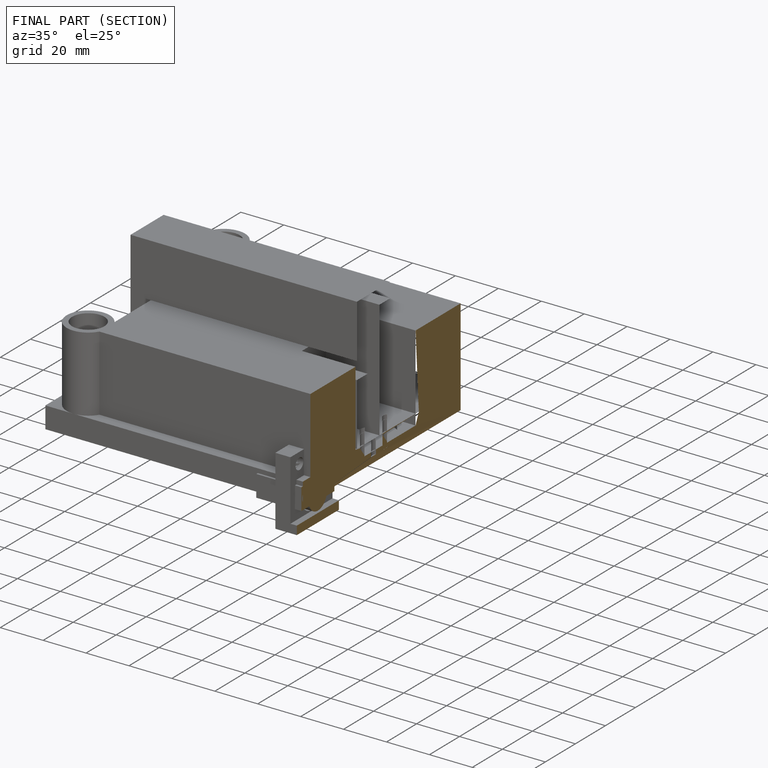
[diagram: finished part — half-section view (interior)]
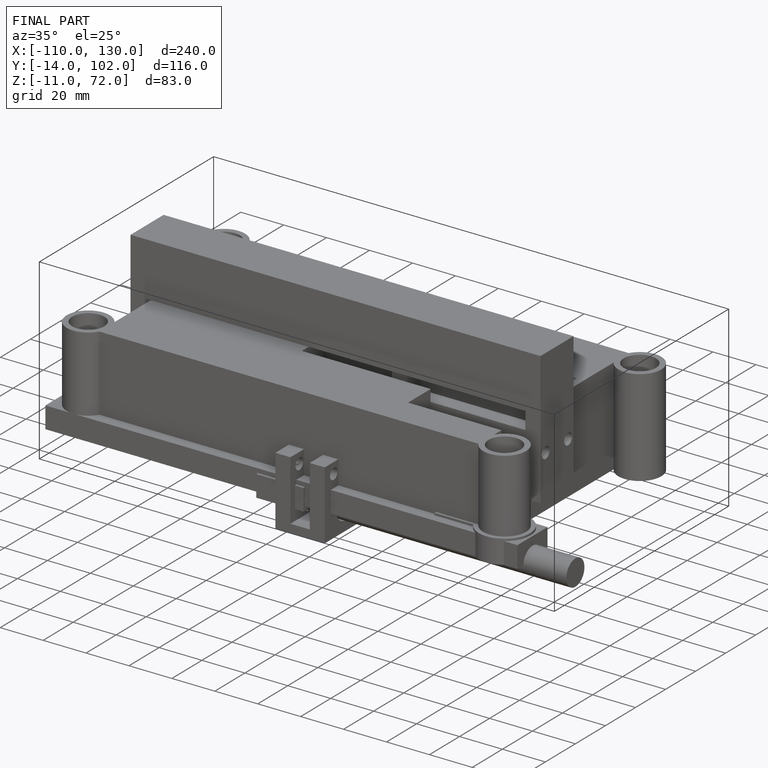
[diagram: finished part — iso view with bounding-box wireframe]
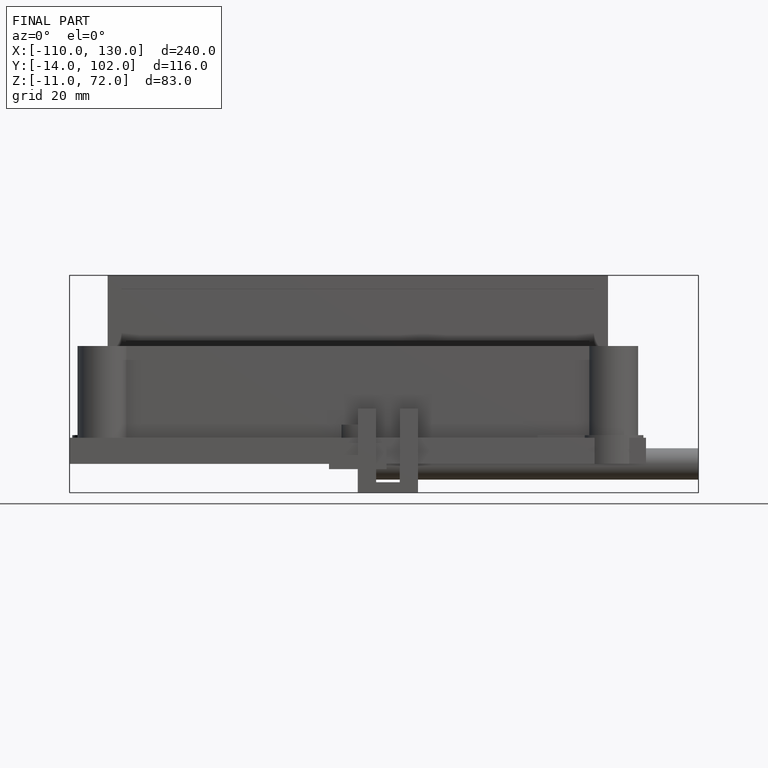
[diagram: finished part — front view with bounding-box wireframe]
